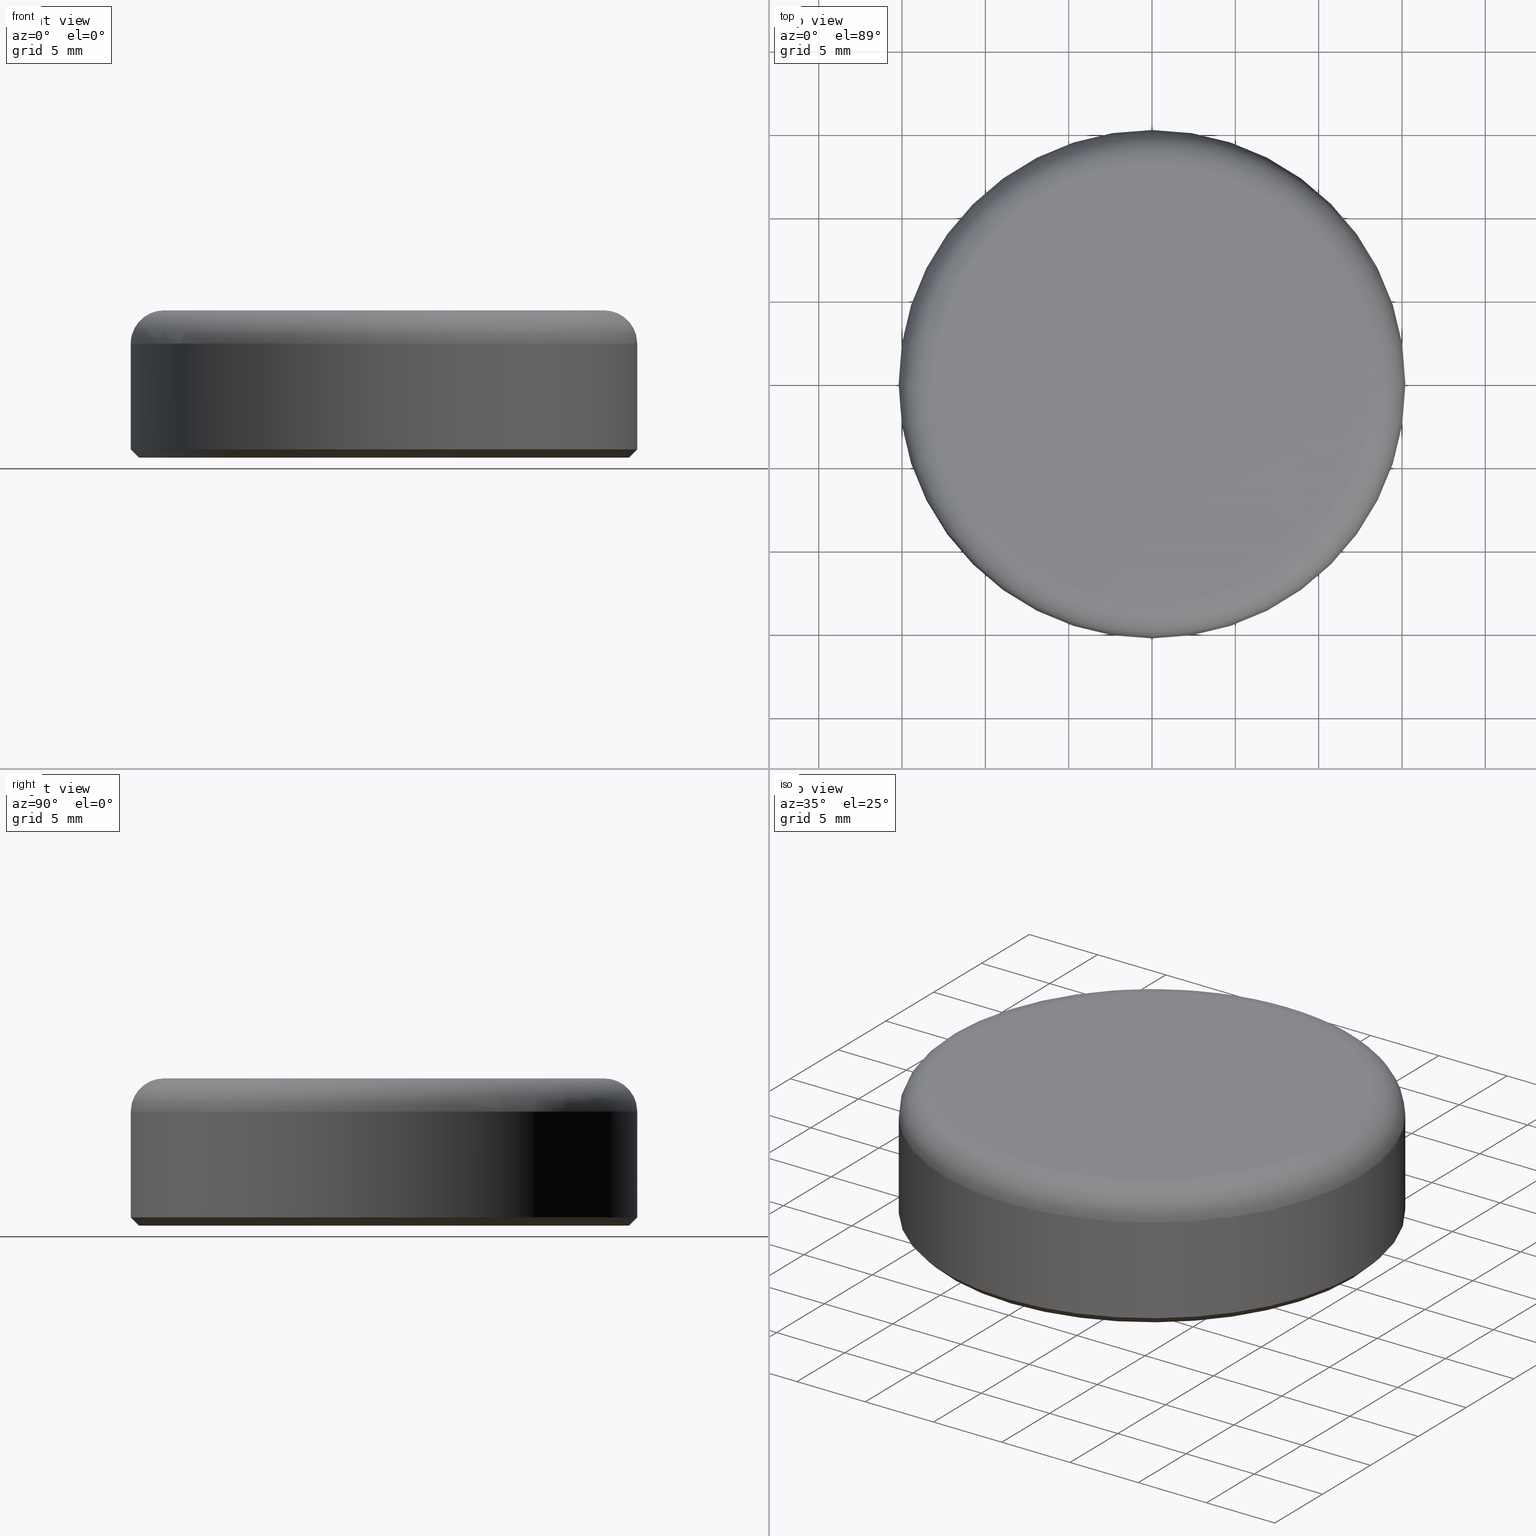
[diagram: canonical four-view strip — front | top / right | iso, engineering-drawing reading convention]
A machine part, canonical four-view strip (front | top / right | iso — engineering-drawing reading convention). The complete STEP part file that produces these views, byte-faithful:
ISO-10303-21;
HEADER;
/* Generated by software containing ST-Developer
 * from STEP Tools, Inc. (www.steptools.com) 
 */
/* OPTION: using custom schema-name function */

FILE_DESCRIPTION(
/* description */ (''),
/* implementation_level */ '2;1');

FILE_NAME(
/* name */ 'C30 Deckel.stp',
/* time_stamp */ '2013-04-16T13:24:37+02:00',
/* author */ (''),
/* organization */ (''),
/* preprocessor_version */ 'ST-DEVELOPER v11',
/* originating_system */ 'SIEMENS PLM Software NX 7.5',
/* authorisation */ '');

FILE_SCHEMA (('AUTOMOTIVE_DESIGN { 1 0 10303 214 1 1 1 1 }'));
ENDSEC;

DATA;
#10=SHAPE_REPRESENTATION_RELATIONSHIP('None',
'relationship between m.ne6B38c4tg-None and m.ne6B38c4tg-None',#22,#11);
#11=ADVANCED_BREP_SHAPE_REPRESENTATION('m.ne6B38c4tg-None',(#32),#1589);
#12=SHAPE_DEFINITION_REPRESENTATION(#13,#22);
#13=PRODUCT_DEFINITION_SHAPE('','',#14);
#14=PRODUCT_DEFINITION(' ','',#16,#15);
#15=PRODUCT_DEFINITION_CONTEXT('part definition',#21,'design');
#16=PRODUCT_DEFINITION_FORMATION_WITH_SPECIFIED_SOURCE(' ',' ',#18,.NOT_KNOWN.);
#17=PRODUCT_RELATED_PRODUCT_CATEGORY('part','',(#18));
#18=PRODUCT('m.ne6B38c4tg','m.ne6B38c4tg',' ',(#19));
#19=PRODUCT_CONTEXT(' ',#21,'mechanical');
#20=APPLICATION_PROTOCOL_DEFINITION('international standard',
'automotive_design',2001,#21);
#21=APPLICATION_CONTEXT(
'core data for automotive mechanical design processes');
#22=SHAPE_REPRESENTATION('m.ne6B38c4tg-None',(#960),#1589);
#23=PRESENTATION_LAYER_ASSIGNMENT('1','Layer 1',(#32));
#24=STYLED_ITEM('',(#25),#32);
#25=PRESENTATION_STYLE_ASSIGNMENT((#26));
#26=SURFACE_STYLE_USAGE(.BOTH.,#27);
#27=SURFACE_SIDE_STYLE('',(#28));
#28=SURFACE_STYLE_FILL_AREA(#29);
#29=FILL_AREA_STYLE('',(#30));
#30=FILL_AREA_STYLE_COLOUR('',#31);
#31=COLOUR_RGB('Dark Gray',0.2,0.2,0.2);
#32=MANIFOLD_SOLID_BREP('1AA05',#33);
#33=CLOSED_SHELL('',(#285,#286,#287,#288,#289,#290,#291,#292,#293,#294,#295,
#296,#297,#298,#299,#300,#301,#302,#303,#304,#305,#306,#307,#308,#309,#310,
#311,#312,#313,#314,#315,#316,#317,#318,#319,#320,#321,#322,#323,#324,#325,
#326,#327,#328,#329,#330,#331,#332,#333,#334,#335,#336,#337,#338,#339));
#34=PLANE('',#993);
#35=PLANE('',#994);
#36=PLANE('',#995);
#37=PLANE('',#996);
#38=PLANE('',#997);
#39=PLANE('',#998);
#40=PLANE('',#999);
#41=PLANE('',#1000);
#42=PLANE('',#1001);
#43=PLANE('',#1002);
#44=PLANE('',#1003);
#45=PLANE('',#1004);
#46=PLANE('',#1005);
#47=PLANE('',#1006);
#48=PLANE('',#1007);
#49=PLANE('',#1008);
#50=PLANE('',#1009);
#51=PLANE('',#1010);
#52=PLANE('',#1013);
#53=PLANE('',#1014);
#54=PLANE('',#1015);
#55=PLANE('',#1016);
#56=PLANE('',#1017);
#57=PLANE('',#1018);
#58=PLANE('',#1019);
#59=PLANE('',#1020);
#60=PLANE('',#1021);
#61=PLANE('',#1022);
#62=PLANE('',#1023);
#63=PLANE('',#1024);
#64=PLANE('',#1028);
#65=PLANE('',#1032);
#66=PLANE('',#1033);
#67=PLANE('',#1034);
#68=PLANE('',#1035);
#69=PLANE('',#1036);
#70=PLANE('',#1037);
#71=PLANE('',#1038);
#72=PLANE('',#1041);
#73=PLANE('',#1042);
#74=PLANE('',#1043);
#75=TOROIDAL_SURFACE('',#985,13.1999999999998,2.);
#76=CYLINDRICAL_SURFACE('',#973,12.9999999999997);
#77=CYLINDRICAL_SURFACE('',#978,14.1999999999996);
#78=CYLINDRICAL_SURFACE('',#983,15.1999999999998);
#79=CYLINDRICAL_SURFACE('',#990,14.);
#80=CYLINDRICAL_SURFACE('',#992,14.);
#81=CYLINDRICAL_SURFACE('',#1027,14.);
#82=CYLINDRICAL_SURFACE('',#1031,14.);
#83=FACE_BOUND('',#393,.T.);
#84=FACE_BOUND('',#394,.T.);
#85=FACE_BOUND('',#395,.T.);
#86=FACE_BOUND('',#396,.T.);
#87=FACE_BOUND('',#397,.T.);
#88=FACE_BOUND('',#398,.T.);
#89=FACE_BOUND('',#399,.T.);
#90=FACE_BOUND('',#400,.T.);
#91=FACE_BOUND('',#401,.T.);
#92=FACE_BOUND('',#402,.T.);
#93=FACE_BOUND('',#403,.T.);
#94=FACE_BOUND('',#404,.T.);
#95=FACE_BOUND('',#426,.T.);
#96=FACE_BOUND('',#427,.T.);
#97=FACE_BOUND('',#452,.T.);
#98=FACE_BOUND('',#453,.T.);
#99=FACE_BOUND('',#454,.T.);
#100=FACE_BOUND('',#455,.T.);
#101=LINE('',#1321,#193);
#102=LINE('',#1325,#194);
#103=LINE('',#1329,#195);
#104=LINE('',#1333,#196);
#105=LINE('',#1337,#197);
#106=LINE('',#1341,#198);
#107=LINE('',#1345,#199);
#108=LINE('',#1349,#200);
#109=LINE('',#1385,#201);
#110=LINE('',#1387,#202);
#111=LINE('',#1394,#203);
#112=LINE('',#1395,#204);
#113=LINE('',#1397,#205);
#114=LINE('',#1400,#206);
#115=LINE('',#1402,#207);
#116=LINE('',#1404,#208);
#117=LINE('',#1406,#209);
#118=LINE('',#1409,#210);
#119=LINE('',#1411,#211);
#120=LINE('',#1413,#212);
#121=LINE('',#1415,#213);
#122=LINE('',#1417,#214);
#123=LINE('',#1419,#215);
#124=LINE('',#1421,#216);
#125=LINE('',#1423,#217);
#126=LINE('',#1425,#218);
#127=LINE('',#1427,#219);
#128=LINE('',#1429,#220);
#129=LINE('',#1431,#221);
#130=LINE('',#1433,#222);
#131=LINE('',#1435,#223);
#132=LINE('',#1437,#224);
#133=LINE('',#1439,#225);
#134=LINE('',#1441,#226);
#135=LINE('',#1443,#227);
#136=LINE('',#1445,#228);
#137=LINE('',#1447,#229);
#138=LINE('',#1449,#230);
#139=LINE('',#1451,#231);
#140=LINE('',#1453,#232);
#141=LINE('',#1455,#233);
#142=LINE('',#1457,#234);
#143=LINE('',#1459,#235);
#144=LINE('',#1461,#236);
#145=LINE('',#1463,#237);
#146=LINE('',#1464,#238);
#147=LINE('',#1466,#239);
#148=LINE('',#1467,#240);
#149=LINE('',#1469,#241);
#150=LINE('',#1471,#242);
#151=LINE('',#1473,#243);
#152=LINE('',#1475,#244);
#153=LINE('',#1477,#245);
#154=LINE('',#1479,#246);
#155=LINE('',#1481,#247);
#156=LINE('',#1483,#248);
#157=LINE('',#1485,#249);
#158=LINE('',#1487,#250);
#159=LINE('',#1489,#251);
#160=LINE('',#1491,#252);
#161=LINE('',#1493,#253);
#162=LINE('',#1495,#254);
#163=LINE('',#1496,#255);
#164=LINE('',#1500,#256);
#165=LINE('',#1501,#257);
#166=LINE('',#1502,#258);
#167=LINE('',#1503,#259);
#168=LINE('',#1507,#260);
#169=LINE('',#1508,#261);
#170=LINE('',#1510,#262);
#171=LINE('',#1512,#263);
#172=LINE('',#1514,#264);
#173=LINE('',#1516,#265);
#174=LINE('',#1518,#266);
#175=LINE('',#1520,#267);
#176=LINE('',#1522,#268);
#177=LINE('',#1524,#269);
#178=LINE('',#1526,#270);
#179=LINE('',#1528,#271);
#180=LINE('',#1530,#272);
#181=LINE('',#1533,#273);
#182=LINE('',#1535,#274);
#183=LINE('',#1537,#275);
#184=LINE('',#1539,#276);
#185=LINE('',#1545,#277);
#186=LINE('',#1551,#278);
#187=LINE('',#1555,#279);
#188=LINE('',#1559,#280);
#189=LINE('',#1568,#281);
#190=LINE('',#1570,#282);
#191=LINE('',#1575,#283);
#192=LINE('',#1577,#284);
#193=VECTOR('',#1054,1.);
#194=VECTOR('',#1057,1.);
#195=VECTOR('',#1060,1.);
#196=VECTOR('',#1063,1.);
#197=VECTOR('',#1066,1.);
#198=VECTOR('',#1069,1.);
#199=VECTOR('',#1072,1.);
#200=VECTOR('',#1075,1.);
#201=VECTOR('',#1110,1.);
#202=VECTOR('',#1111,1.);
#203=VECTOR('',#1118,1.);
#204=VECTOR('',#1119,1.);
#205=VECTOR('',#1122,1.);
#206=VECTOR('',#1123,1.);
#207=VECTOR('',#1124,1.);
#208=VECTOR('',#1125,1.);
#209=VECTOR('',#1128,1.);
#210=VECTOR('',#1129,1.);
#211=VECTOR('',#1130,1.);
#212=VECTOR('',#1131,1.);
#213=VECTOR('',#1134,1.);
#214=VECTOR('',#1135,1.);
#215=VECTOR('',#1136,1.);
#216=VECTOR('',#1139,1.);
#217=VECTOR('',#1140,1.);
#218=VECTOR('',#1141,1.);
#219=VECTOR('',#1144,1.);
#220=VECTOR('',#1145,1.);
#221=VECTOR('',#1146,1.);
#222=VECTOR('',#1149,1.);
#223=VECTOR('',#1150,1.);
#224=VECTOR('',#1151,1.);
#225=VECTOR('',#1154,1.);
#226=VECTOR('',#1155,1.);
#227=VECTOR('',#1156,1.);
#228=VECTOR('',#1159,1.);
#229=VECTOR('',#1160,1.);
#230=VECTOR('',#1161,1.);
#231=VECTOR('',#1164,1.);
#232=VECTOR('',#1165,1.);
#233=VECTOR('',#1166,1.);
#234=VECTOR('',#1169,1.);
#235=VECTOR('',#1170,1.);
#236=VECTOR('',#1171,1.);
#237=VECTOR('',#1174,1.);
#238=VECTOR('',#1175,1.);
#239=VECTOR('',#1178,1.);
#240=VECTOR('',#1179,1.);
#241=VECTOR('',#1182,1.);
#242=VECTOR('',#1183,1.);
#243=VECTOR('',#1184,1.);
#244=VECTOR('',#1187,1.);
#245=VECTOR('',#1188,1.);
#246=VECTOR('',#1191,1.);
#247=VECTOR('',#1192,1.);
#248=VECTOR('',#1195,1.);
#249=VECTOR('',#1196,1.);
#250=VECTOR('',#1199,1.);
#251=VECTOR('',#1200,1.);
#252=VECTOR('',#1203,1.);
#253=VECTOR('',#1204,1.);
#254=VECTOR('',#1207,1.);
#255=VECTOR('',#1208,1.);
#256=VECTOR('',#1211,1.);
#257=VECTOR('',#1212,1.);
#258=VECTOR('',#1213,1.);
#259=VECTOR('',#1214,1.);
#260=VECTOR('',#1217,1.);
#261=VECTOR('',#1218,1.);
#262=VECTOR('',#1221,1.);
#263=VECTOR('',#1222,1.);
#264=VECTOR('',#1225,1.);
#265=VECTOR('',#1226,1.);
#266=VECTOR('',#1229,1.);
#267=VECTOR('',#1230,1.);
#268=VECTOR('',#1233,1.);
#269=VECTOR('',#1234,1.);
#270=VECTOR('',#1237,1.);
#271=VECTOR('',#1238,1.);
#272=VECTOR('',#1241,1.);
#273=VECTOR('',#1246,1.);
#274=VECTOR('',#1249,1.);
#275=VECTOR('',#1252,1.);
#276=VECTOR('',#1253,1.);
#277=VECTOR('',#1256,1.);
#278=VECTOR('',#1257,1.);
#279=VECTOR('',#1262,1.);
#280=VECTOR('',#1267,1.);
#281=VECTOR('',#1274,1.);
#282=VECTOR('',#1277,1.);
#283=VECTOR('',#1280,1.);
#284=VECTOR('',#1283,1.);
#285=ADVANCED_FACE('',(#346),#340,.F.);
#286=ADVANCED_FACE('',(#83,#84),#76,.F.);
#287=ADVANCED_FACE('',(#85,#86),#341,.F.);
#288=ADVANCED_FACE('',(#87,#88),#77,.F.);
#289=ADVANCED_FACE('',(#89,#90),#342,.T.);
#290=ADVANCED_FACE('',(#91,#92),#78,.T.);
#291=ADVANCED_FACE('',(#93,#94),#75,.T.);
#292=ADVANCED_FACE('',(#347),#343,.F.);
#293=ADVANCED_FACE('',(#348),#79,.F.);
#294=ADVANCED_FACE('',(#349),#80,.F.);
#295=ADVANCED_FACE('',(#350),#34,.T.);
#296=ADVANCED_FACE('',(#351),#35,.T.);
#297=ADVANCED_FACE('',(#352),#36,.T.);
#298=ADVANCED_FACE('',(#353),#37,.T.);
#299=ADVANCED_FACE('',(#354),#38,.T.);
#300=ADVANCED_FACE('',(#355),#39,.T.);
#301=ADVANCED_FACE('',(#356),#40,.T.);
#302=ADVANCED_FACE('',(#357),#41,.T.);
#303=ADVANCED_FACE('',(#358),#42,.T.);
#304=ADVANCED_FACE('',(#359),#43,.T.);
#305=ADVANCED_FACE('',(#360),#44,.T.);
#306=ADVANCED_FACE('',(#361),#45,.T.);
#307=ADVANCED_FACE('',(#362),#46,.F.);
#308=ADVANCED_FACE('',(#363),#47,.F.);
#309=ADVANCED_FACE('',(#364),#48,.F.);
#310=ADVANCED_FACE('',(#365),#49,.F.);
#311=ADVANCED_FACE('',(#366),#50,.F.);
#312=ADVANCED_FACE('',(#367),#51,.F.);
#313=ADVANCED_FACE('',(#95,#96),#52,.T.);
#314=ADVANCED_FACE('',(#368),#53,.F.);
#315=ADVANCED_FACE('',(#369),#54,.F.);
#316=ADVANCED_FACE('',(#370),#55,.F.);
#317=ADVANCED_FACE('',(#371),#56,.F.);
#318=ADVANCED_FACE('',(#372),#57,.F.);
#319=ADVANCED_FACE('',(#373),#58,.F.);
#320=ADVANCED_FACE('',(#374),#59,.T.);
#321=ADVANCED_FACE('',(#375),#60,.T.);
#322=ADVANCED_FACE('',(#376),#61,.T.);
#323=ADVANCED_FACE('',(#377),#62,.T.);
#324=ADVANCED_FACE('',(#378),#63,.T.);
#325=ADVANCED_FACE('',(#379),#81,.F.);
#326=ADVANCED_FACE('',(#380),#64,.T.);
#327=ADVANCED_FACE('',(#381),#82,.F.);
#328=ADVANCED_FACE('',(#382),#65,.T.);
#329=ADVANCED_FACE('',(#383),#66,.T.);
#330=ADVANCED_FACE('',(#384),#67,.T.);
#331=ADVANCED_FACE('',(#385),#68,.T.);
#332=ADVANCED_FACE('',(#386),#69,.T.);
#333=ADVANCED_FACE('',(#387),#70,.T.);
#334=ADVANCED_FACE('',(#388),#71,.T.);
#335=ADVANCED_FACE('',(#389),#344,.F.);
#336=ADVANCED_FACE('',(#390),#345,.F.);
#337=ADVANCED_FACE('',(#391),#72,.T.);
#338=ADVANCED_FACE('',(#97,#98),#73,.T.);
#339=ADVANCED_FACE('',(#99,#100),#74,.T.);
#340=CONICAL_SURFACE('',#963,13.8303729595568,24.9999999999986);
#341=CONICAL_SURFACE('',#975,13.2999999999997,24.9999999999964);
#342=CONICAL_SURFACE('',#981,14.9499999999996,45.0000000000029);
#343=CONICAL_SURFACE('',#988,13.8303729595568,24.9999999999986);
#344=CONICAL_SURFACE('',#1039,13.8303729595568,24.9999999999986);
#345=CONICAL_SURFACE('',#1040,13.8303729595568,24.9999999999986);
#346=FACE_OUTER_BOUND('',#392,.T.);
#347=FACE_OUTER_BOUND('',#405,.T.);
#348=FACE_OUTER_BOUND('',#406,.T.);
#349=FACE_OUTER_BOUND('',#407,.T.);
#350=FACE_OUTER_BOUND('',#408,.T.);
#351=FACE_OUTER_BOUND('',#409,.T.);
#352=FACE_OUTER_BOUND('',#410,.T.);
#353=FACE_OUTER_BOUND('',#411,.T.);
#354=FACE_OUTER_BOUND('',#412,.T.);
#355=FACE_OUTER_BOUND('',#413,.T.);
#356=FACE_OUTER_BOUND('',#414,.T.);
#357=FACE_OUTER_BOUND('',#415,.T.);
#358=FACE_OUTER_BOUND('',#416,.T.);
#359=FACE_OUTER_BOUND('',#417,.T.);
#360=FACE_OUTER_BOUND('',#418,.T.);
#361=FACE_OUTER_BOUND('',#419,.T.);
#362=FACE_OUTER_BOUND('',#420,.T.);
#363=FACE_OUTER_BOUND('',#421,.T.);
#364=FACE_OUTER_BOUND('',#422,.T.);
#365=FACE_OUTER_BOUND('',#423,.T.);
#366=FACE_OUTER_BOUND('',#424,.T.);
#367=FACE_OUTER_BOUND('',#425,.T.);
#368=FACE_OUTER_BOUND('',#428,.T.);
#369=FACE_OUTER_BOUND('',#429,.T.);
#370=FACE_OUTER_BOUND('',#430,.T.);
#371=FACE_OUTER_BOUND('',#431,.T.);
#372=FACE_OUTER_BOUND('',#432,.T.);
#373=FACE_OUTER_BOUND('',#433,.T.);
#374=FACE_OUTER_BOUND('',#434,.T.);
#375=FACE_OUTER_BOUND('',#435,.T.);
#376=FACE_OUTER_BOUND('',#436,.T.);
#377=FACE_OUTER_BOUND('',#437,.T.);
#378=FACE_OUTER_BOUND('',#438,.T.);
#379=FACE_OUTER_BOUND('',#439,.T.);
#380=FACE_OUTER_BOUND('',#440,.T.);
#381=FACE_OUTER_BOUND('',#441,.T.);
#382=FACE_OUTER_BOUND('',#442,.T.);
#383=FACE_OUTER_BOUND('',#443,.T.);
#384=FACE_OUTER_BOUND('',#444,.T.);
#385=FACE_OUTER_BOUND('',#445,.T.);
#386=FACE_OUTER_BOUND('',#446,.T.);
#387=FACE_OUTER_BOUND('',#447,.T.);
#388=FACE_OUTER_BOUND('',#448,.T.);
#389=FACE_OUTER_BOUND('',#449,.T.);
#390=FACE_OUTER_BOUND('',#450,.T.);
#391=FACE_OUTER_BOUND('',#451,.T.);
#392=EDGE_LOOP('',(#464,#465,#466,#467));
#393=EDGE_LOOP('',(#468,#469,#470,#471,#472,#473,#474,#475,#476,#477,#478,
#479,#480,#481,#482,#483));
#394=EDGE_LOOP('',(#484));
#395=EDGE_LOOP('',(#485));
#396=EDGE_LOOP('',(#486));
#397=EDGE_LOOP('',(#487));
#398=EDGE_LOOP('',(#488));
#399=EDGE_LOOP('',(#489));
#400=EDGE_LOOP('',(#490));
#401=EDGE_LOOP('',(#491));
#402=EDGE_LOOP('',(#492));
#403=EDGE_LOOP('',(#493));
#404=EDGE_LOOP('',(#494));
#405=EDGE_LOOP('',(#495,#496,#497,#498));
#406=EDGE_LOOP('',(#499,#500,#501,#502));
#407=EDGE_LOOP('',(#503,#504,#505,#506));
#408=EDGE_LOOP('',(#507,#508,#509,#510));
#409=EDGE_LOOP('',(#511,#512,#513,#514));
#410=EDGE_LOOP('',(#515,#516,#517,#518));
#411=EDGE_LOOP('',(#519,#520,#521,#522));
#412=EDGE_LOOP('',(#523,#524,#525,#526));
#413=EDGE_LOOP('',(#527,#528,#529,#530));
#414=EDGE_LOOP('',(#531,#532,#533,#534));
#415=EDGE_LOOP('',(#535,#536,#537,#538));
#416=EDGE_LOOP('',(#539,#540,#541,#542));
#417=EDGE_LOOP('',(#543,#544,#545,#546));
#418=EDGE_LOOP('',(#547,#548,#549,#550));
#419=EDGE_LOOP('',(#551,#552,#553,#554));
#420=EDGE_LOOP('',(#555,#556,#557,#558));
#421=EDGE_LOOP('',(#559,#560,#561,#562));
#422=EDGE_LOOP('',(#563,#564,#565,#566));
#423=EDGE_LOOP('',(#567,#568,#569,#570));
#424=EDGE_LOOP('',(#571,#572,#573,#574));
#425=EDGE_LOOP('',(#575,#576,#577,#578));
#426=EDGE_LOOP('',(#579,#580,#581,#582,#583,#584,#585,#586,#587,#588,#589,
#590,#591,#592,#593,#594));
#427=EDGE_LOOP('',(#595,#596,#597,#598,#599,#600,#601,#602,#603,#604,#605,
#606));
#428=EDGE_LOOP('',(#607,#608,#609,#610));
#429=EDGE_LOOP('',(#611,#612,#613,#614));
#430=EDGE_LOOP('',(#615,#616,#617,#618));
#431=EDGE_LOOP('',(#619,#620,#621,#622));
#432=EDGE_LOOP('',(#623,#624,#625,#626));
#433=EDGE_LOOP('',(#627,#628,#629,#630));
#434=EDGE_LOOP('',(#631,#632,#633,#634,#635,#636,#637,#638,#639,#640,#641,
#642));
#435=EDGE_LOOP('',(#643,#644,#645,#646,#647));
#436=EDGE_LOOP('',(#648,#649,#650,#651,#652));
#437=EDGE_LOOP('',(#653,#654,#655,#656,#657));
#438=EDGE_LOOP('',(#658,#659,#660,#661,#662));
#439=EDGE_LOOP('',(#663,#664,#665,#666));
#440=EDGE_LOOP('',(#667,#668,#669,#670,#671));
#441=EDGE_LOOP('',(#672,#673,#674,#675));
#442=EDGE_LOOP('',(#676,#677,#678,#679,#680));
#443=EDGE_LOOP('',(#681,#682,#683,#684,#685));
#444=EDGE_LOOP('',(#686,#687,#688,#689,#690));
#445=EDGE_LOOP('',(#691,#692,#693,#694));
#446=EDGE_LOOP('',(#695,#696,#697,#698));
#447=EDGE_LOOP('',(#699,#700,#701,#702));
#448=EDGE_LOOP('',(#703,#704,#705,#706));
#449=EDGE_LOOP('',(#707,#708,#709,#710));
#450=EDGE_LOOP('',(#711,#712,#713,#714));
#451=EDGE_LOOP('',(#715));
#452=EDGE_LOOP('',(#716));
#453=EDGE_LOOP('',(#717));
#454=EDGE_LOOP('',(#718));
#455=EDGE_LOOP('',(#719));
#456=(
BOUNDED_CURVE()
B_SPLINE_CURVE(2,(#1308,#1309,#1310),.UNSPECIFIED.,.F.,.F.)
B_SPLINE_CURVE_WITH_KNOTS((3,3),(0.,1.),.UNSPECIFIED.)
CURVE()
GEOMETRIC_REPRESENTATION_ITEM()
RATIONAL_B_SPLINE_CURVE((1.,1.00013002743835,1.00002912207519))
REPRESENTATION_ITEM('')
);
#457=(
BOUNDED_CURVE()
B_SPLINE_CURVE(2,(#1314,#1315,#1316),.UNSPECIFIED.,.F.,.F.)
B_SPLINE_CURVE_WITH_KNOTS((3,3),(0.,1.),.UNSPECIFIED.)
CURVE()
GEOMETRIC_REPRESENTATION_ITEM()
RATIONAL_B_SPLINE_CURVE((1.00002912207204,1.00013002742425,1.))
REPRESENTATION_ITEM('')
);
#458=(
BOUNDED_CURVE()
B_SPLINE_CURVE(2,(#1375,#1376,#1377),.UNSPECIFIED.,.F.,.F.)
B_SPLINE_CURVE_WITH_KNOTS((3,3),(0.,1.),.UNSPECIFIED.)
CURVE()
GEOMETRIC_REPRESENTATION_ITEM()
RATIONAL_B_SPLINE_CURVE((1.00002912207258,1.00013002742668,1.))
REPRESENTATION_ITEM('')
);
#459=(
BOUNDED_CURVE()
B_SPLINE_CURVE(2,(#1381,#1382,#1383),.UNSPECIFIED.,.F.,.F.)
B_SPLINE_CURVE_WITH_KNOTS((3,3),(0.,1.),.UNSPECIFIED.)
CURVE()
GEOMETRIC_REPRESENTATION_ITEM()
RATIONAL_B_SPLINE_CURVE((1.,1.00013002742893,1.00002912207309))
REPRESENTATION_ITEM('')
);
#460=(
BOUNDED_CURVE()
B_SPLINE_CURVE(2,(#1541,#1542,#1543),.UNSPECIFIED.,.F.,.F.)
B_SPLINE_CURVE_WITH_KNOTS((3,3),(0.,1.),.UNSPECIFIED.)
CURVE()
GEOMETRIC_REPRESENTATION_ITEM()
RATIONAL_B_SPLINE_CURVE((1.,1.00013002744536,1.00002912207677))
REPRESENTATION_ITEM('')
);
#461=(
BOUNDED_CURVE()
B_SPLINE_CURVE(2,(#1547,#1548,#1549),.UNSPECIFIED.,.F.,.F.)
B_SPLINE_CURVE_WITH_KNOTS((3,3),(0.,1.),.UNSPECIFIED.)
CURVE()
GEOMETRIC_REPRESENTATION_ITEM()
RATIONAL_B_SPLINE_CURVE((1.00002912207325,1.00013002742964,1.))
REPRESENTATION_ITEM('')
);
#462=(
BOUNDED_CURVE()
B_SPLINE_CURVE(2,(#1560,#1561,#1562),.UNSPECIFIED.,.F.,.F.)
B_SPLINE_CURVE_WITH_KNOTS((3,3),(0.,1.),.UNSPECIFIED.)
CURVE()
GEOMETRIC_REPRESENTATION_ITEM()
RATIONAL_B_SPLINE_CURVE((1.00002912206861,1.00013002740895,1.))
REPRESENTATION_ITEM('')
);
#463=(
BOUNDED_CURVE()
B_SPLINE_CURVE(2,(#1571,#1572,#1573),.UNSPECIFIED.,.F.,.F.)
B_SPLINE_CURVE_WITH_KNOTS((3,3),(0.,1.),.UNSPECIFIED.)
CURVE()
GEOMETRIC_REPRESENTATION_ITEM()
RATIONAL_B_SPLINE_CURVE((1.,1.00013002742676,1.0000291220726))
REPRESENTATION_ITEM('')
);
#464=ORIENTED_EDGE('',*,*,#804,.F.);
#465=ORIENTED_EDGE('',*,*,#805,.T.);
#466=ORIENTED_EDGE('',*,*,#806,.T.);
#467=ORIENTED_EDGE('',*,*,#807,.T.);
#468=ORIENTED_EDGE('',*,*,#808,.F.);
#469=ORIENTED_EDGE('',*,*,#809,.T.);
#470=ORIENTED_EDGE('',*,*,#810,.F.);
#471=ORIENTED_EDGE('',*,*,#811,.F.);
#472=ORIENTED_EDGE('',*,*,#812,.F.);
#473=ORIENTED_EDGE('',*,*,#813,.T.);
#474=ORIENTED_EDGE('',*,*,#814,.F.);
#475=ORIENTED_EDGE('',*,*,#815,.F.);
#476=ORIENTED_EDGE('',*,*,#816,.F.);
#477=ORIENTED_EDGE('',*,*,#817,.T.);
#478=ORIENTED_EDGE('',*,*,#818,.F.);
#479=ORIENTED_EDGE('',*,*,#819,.F.);
#480=ORIENTED_EDGE('',*,*,#820,.F.);
#481=ORIENTED_EDGE('',*,*,#821,.T.);
#482=ORIENTED_EDGE('',*,*,#822,.F.);
#483=ORIENTED_EDGE('',*,*,#823,.F.);
#484=ORIENTED_EDGE('',*,*,#824,.T.);
#485=ORIENTED_EDGE('',*,*,#824,.F.);
#486=ORIENTED_EDGE('',*,*,#825,.T.);
#487=ORIENTED_EDGE('',*,*,#826,.F.);
#488=ORIENTED_EDGE('',*,*,#827,.T.);
#489=ORIENTED_EDGE('',*,*,#828,.T.);
#490=ORIENTED_EDGE('',*,*,#829,.F.);
#491=ORIENTED_EDGE('',*,*,#830,.F.);
#492=ORIENTED_EDGE('',*,*,#828,.F.);
#493=ORIENTED_EDGE('',*,*,#831,.T.);
#494=ORIENTED_EDGE('',*,*,#830,.T.);
#495=ORIENTED_EDGE('',*,*,#832,.T.);
#496=ORIENTED_EDGE('',*,*,#833,.T.);
#497=ORIENTED_EDGE('',*,*,#834,.F.);
#498=ORIENTED_EDGE('',*,*,#835,.T.);
#499=ORIENTED_EDGE('',*,*,#836,.T.);
#500=ORIENTED_EDGE('',*,*,#832,.F.);
#501=ORIENTED_EDGE('',*,*,#837,.F.);
#502=ORIENTED_EDGE('',*,*,#838,.F.);
#503=ORIENTED_EDGE('',*,*,#839,.F.);
#504=ORIENTED_EDGE('',*,*,#840,.T.);
#505=ORIENTED_EDGE('',*,*,#806,.F.);
#506=ORIENTED_EDGE('',*,*,#841,.F.);
#507=ORIENTED_EDGE('',*,*,#842,.T.);
#508=ORIENTED_EDGE('',*,*,#843,.T.);
#509=ORIENTED_EDGE('',*,*,#844,.T.);
#510=ORIENTED_EDGE('',*,*,#845,.T.);
#511=ORIENTED_EDGE('',*,*,#846,.T.);
#512=ORIENTED_EDGE('',*,*,#847,.T.);
#513=ORIENTED_EDGE('',*,*,#848,.T.);
#514=ORIENTED_EDGE('',*,*,#849,.T.);
#515=ORIENTED_EDGE('',*,*,#850,.T.);
#516=ORIENTED_EDGE('',*,*,#845,.F.);
#517=ORIENTED_EDGE('',*,*,#851,.T.);
#518=ORIENTED_EDGE('',*,*,#852,.T.);
#519=ORIENTED_EDGE('',*,*,#853,.T.);
#520=ORIENTED_EDGE('',*,*,#854,.T.);
#521=ORIENTED_EDGE('',*,*,#855,.T.);
#522=ORIENTED_EDGE('',*,*,#852,.F.);
#523=ORIENTED_EDGE('',*,*,#856,.T.);
#524=ORIENTED_EDGE('',*,*,#854,.F.);
#525=ORIENTED_EDGE('',*,*,#857,.T.);
#526=ORIENTED_EDGE('',*,*,#858,.T.);
#527=ORIENTED_EDGE('',*,*,#859,.T.);
#528=ORIENTED_EDGE('',*,*,#858,.F.);
#529=ORIENTED_EDGE('',*,*,#860,.T.);
#530=ORIENTED_EDGE('',*,*,#861,.T.);
#531=ORIENTED_EDGE('',*,*,#862,.T.);
#532=ORIENTED_EDGE('',*,*,#863,.T.);
#533=ORIENTED_EDGE('',*,*,#864,.T.);
#534=ORIENTED_EDGE('',*,*,#861,.F.);
#535=ORIENTED_EDGE('',*,*,#865,.T.);
#536=ORIENTED_EDGE('',*,*,#863,.F.);
#537=ORIENTED_EDGE('',*,*,#866,.T.);
#538=ORIENTED_EDGE('',*,*,#867,.T.);
#539=ORIENTED_EDGE('',*,*,#868,.T.);
#540=ORIENTED_EDGE('',*,*,#867,.F.);
#541=ORIENTED_EDGE('',*,*,#869,.T.);
#542=ORIENTED_EDGE('',*,*,#870,.T.);
#543=ORIENTED_EDGE('',*,*,#871,.T.);
#544=ORIENTED_EDGE('',*,*,#872,.T.);
#545=ORIENTED_EDGE('',*,*,#873,.T.);
#546=ORIENTED_EDGE('',*,*,#870,.F.);
#547=ORIENTED_EDGE('',*,*,#874,.T.);
#548=ORIENTED_EDGE('',*,*,#872,.F.);
#549=ORIENTED_EDGE('',*,*,#875,.T.);
#550=ORIENTED_EDGE('',*,*,#847,.F.);
#551=ORIENTED_EDGE('',*,*,#876,.T.);
#552=ORIENTED_EDGE('',*,*,#843,.F.);
#553=ORIENTED_EDGE('',*,*,#877,.T.);
#554=ORIENTED_EDGE('',*,*,#849,.F.);
#555=ORIENTED_EDGE('',*,*,#864,.F.);
#556=ORIENTED_EDGE('',*,*,#878,.T.);
#557=ORIENTED_EDGE('',*,*,#879,.F.);
#558=ORIENTED_EDGE('',*,*,#880,.F.);
#559=ORIENTED_EDGE('',*,*,#865,.F.);
#560=ORIENTED_EDGE('',*,*,#881,.T.);
#561=ORIENTED_EDGE('',*,*,#882,.F.);
#562=ORIENTED_EDGE('',*,*,#878,.F.);
#563=ORIENTED_EDGE('',*,*,#868,.F.);
#564=ORIENTED_EDGE('',*,*,#883,.F.);
#565=ORIENTED_EDGE('',*,*,#884,.F.);
#566=ORIENTED_EDGE('',*,*,#881,.F.);
#567=ORIENTED_EDGE('',*,*,#873,.F.);
#568=ORIENTED_EDGE('',*,*,#885,.T.);
#569=ORIENTED_EDGE('',*,*,#886,.F.);
#570=ORIENTED_EDGE('',*,*,#883,.T.);
#571=ORIENTED_EDGE('',*,*,#874,.F.);
#572=ORIENTED_EDGE('',*,*,#887,.T.);
#573=ORIENTED_EDGE('',*,*,#888,.F.);
#574=ORIENTED_EDGE('',*,*,#885,.F.);
#575=ORIENTED_EDGE('',*,*,#846,.F.);
#576=ORIENTED_EDGE('',*,*,#889,.T.);
#577=ORIENTED_EDGE('',*,*,#890,.F.);
#578=ORIENTED_EDGE('',*,*,#887,.F.);
#579=ORIENTED_EDGE('',*,*,#891,.T.);
#580=ORIENTED_EDGE('',*,*,#822,.T.);
#581=ORIENTED_EDGE('',*,*,#892,.T.);
#582=ORIENTED_EDGE('',*,*,#893,.T.);
#583=ORIENTED_EDGE('',*,*,#894,.T.);
#584=ORIENTED_EDGE('',*,*,#818,.T.);
#585=ORIENTED_EDGE('',*,*,#895,.T.);
#586=ORIENTED_EDGE('',*,*,#834,.T.);
#587=ORIENTED_EDGE('',*,*,#896,.T.);
#588=ORIENTED_EDGE('',*,*,#814,.T.);
#589=ORIENTED_EDGE('',*,*,#897,.T.);
#590=ORIENTED_EDGE('',*,*,#898,.T.);
#591=ORIENTED_EDGE('',*,*,#899,.T.);
#592=ORIENTED_EDGE('',*,*,#810,.T.);
#593=ORIENTED_EDGE('',*,*,#900,.T.);
#594=ORIENTED_EDGE('',*,*,#804,.T.);
#595=ORIENTED_EDGE('',*,*,#848,.F.);
#596=ORIENTED_EDGE('',*,*,#875,.F.);
#597=ORIENTED_EDGE('',*,*,#871,.F.);
#598=ORIENTED_EDGE('',*,*,#869,.F.);
#599=ORIENTED_EDGE('',*,*,#866,.F.);
#600=ORIENTED_EDGE('',*,*,#862,.F.);
#601=ORIENTED_EDGE('',*,*,#860,.F.);
#602=ORIENTED_EDGE('',*,*,#857,.F.);
#603=ORIENTED_EDGE('',*,*,#853,.F.);
#604=ORIENTED_EDGE('',*,*,#851,.F.);
#605=ORIENTED_EDGE('',*,*,#844,.F.);
#606=ORIENTED_EDGE('',*,*,#876,.F.);
#607=ORIENTED_EDGE('',*,*,#877,.F.);
#608=ORIENTED_EDGE('',*,*,#901,.T.);
#609=ORIENTED_EDGE('',*,*,#902,.F.);
#610=ORIENTED_EDGE('',*,*,#889,.F.);
#611=ORIENTED_EDGE('',*,*,#842,.F.);
#612=ORIENTED_EDGE('',*,*,#903,.T.);
#613=ORIENTED_EDGE('',*,*,#904,.F.);
#614=ORIENTED_EDGE('',*,*,#901,.F.);
#615=ORIENTED_EDGE('',*,*,#850,.F.);
#616=ORIENTED_EDGE('',*,*,#905,.F.);
#617=ORIENTED_EDGE('',*,*,#906,.F.);
#618=ORIENTED_EDGE('',*,*,#903,.F.);
#619=ORIENTED_EDGE('',*,*,#855,.F.);
#620=ORIENTED_EDGE('',*,*,#907,.T.);
#621=ORIENTED_EDGE('',*,*,#908,.F.);
#622=ORIENTED_EDGE('',*,*,#905,.T.);
#623=ORIENTED_EDGE('',*,*,#856,.F.);
#624=ORIENTED_EDGE('',*,*,#909,.T.);
#625=ORIENTED_EDGE('',*,*,#910,.F.);
#626=ORIENTED_EDGE('',*,*,#907,.F.);
#627=ORIENTED_EDGE('',*,*,#859,.F.);
#628=ORIENTED_EDGE('',*,*,#880,.T.);
#629=ORIENTED_EDGE('',*,*,#911,.F.);
#630=ORIENTED_EDGE('',*,*,#909,.F.);
#631=ORIENTED_EDGE('',*,*,#908,.T.);
#632=ORIENTED_EDGE('',*,*,#910,.T.);
#633=ORIENTED_EDGE('',*,*,#911,.T.);
#634=ORIENTED_EDGE('',*,*,#879,.T.);
#635=ORIENTED_EDGE('',*,*,#882,.T.);
#636=ORIENTED_EDGE('',*,*,#884,.T.);
#637=ORIENTED_EDGE('',*,*,#886,.T.);
#638=ORIENTED_EDGE('',*,*,#888,.T.);
#639=ORIENTED_EDGE('',*,*,#890,.T.);
#640=ORIENTED_EDGE('',*,*,#902,.T.);
#641=ORIENTED_EDGE('',*,*,#904,.T.);
#642=ORIENTED_EDGE('',*,*,#906,.T.);
#643=ORIENTED_EDGE('',*,*,#912,.F.);
#644=ORIENTED_EDGE('',*,*,#823,.T.);
#645=ORIENTED_EDGE('',*,*,#891,.F.);
#646=ORIENTED_EDGE('',*,*,#807,.F.);
#647=ORIENTED_EDGE('',*,*,#840,.F.);
#648=ORIENTED_EDGE('',*,*,#913,.F.);
#649=ORIENTED_EDGE('',*,*,#841,.T.);
#650=ORIENTED_EDGE('',*,*,#805,.F.);
#651=ORIENTED_EDGE('',*,*,#900,.F.);
#652=ORIENTED_EDGE('',*,*,#809,.F.);
#653=ORIENTED_EDGE('',*,*,#914,.F.);
#654=ORIENTED_EDGE('',*,*,#915,.T.);
#655=ORIENTED_EDGE('',*,*,#916,.F.);
#656=ORIENTED_EDGE('',*,*,#892,.F.);
#657=ORIENTED_EDGE('',*,*,#821,.F.);
#658=ORIENTED_EDGE('',*,*,#917,.F.);
#659=ORIENTED_EDGE('',*,*,#811,.T.);
#660=ORIENTED_EDGE('',*,*,#899,.F.);
#661=ORIENTED_EDGE('',*,*,#918,.F.);
#662=ORIENTED_EDGE('',*,*,#919,.F.);
#663=ORIENTED_EDGE('',*,*,#920,.F.);
#664=ORIENTED_EDGE('',*,*,#921,.T.);
#665=ORIENTED_EDGE('',*,*,#922,.F.);
#666=ORIENTED_EDGE('',*,*,#915,.F.);
#667=ORIENTED_EDGE('',*,*,#923,.F.);
#668=ORIENTED_EDGE('',*,*,#819,.T.);
#669=ORIENTED_EDGE('',*,*,#894,.F.);
#670=ORIENTED_EDGE('',*,*,#924,.F.);
#671=ORIENTED_EDGE('',*,*,#921,.F.);
#672=ORIENTED_EDGE('',*,*,#925,.F.);
#673=ORIENTED_EDGE('',*,*,#919,.T.);
#674=ORIENTED_EDGE('',*,*,#926,.F.);
#675=ORIENTED_EDGE('',*,*,#927,.F.);
#676=ORIENTED_EDGE('',*,*,#928,.F.);
#677=ORIENTED_EDGE('',*,*,#927,.T.);
#678=ORIENTED_EDGE('',*,*,#929,.F.);
#679=ORIENTED_EDGE('',*,*,#897,.F.);
#680=ORIENTED_EDGE('',*,*,#813,.F.);
#681=ORIENTED_EDGE('',*,*,#930,.F.);
#682=ORIENTED_EDGE('',*,*,#815,.T.);
#683=ORIENTED_EDGE('',*,*,#896,.F.);
#684=ORIENTED_EDGE('',*,*,#833,.F.);
#685=ORIENTED_EDGE('',*,*,#836,.F.);
#686=ORIENTED_EDGE('',*,*,#931,.F.);
#687=ORIENTED_EDGE('',*,*,#837,.T.);
#688=ORIENTED_EDGE('',*,*,#835,.F.);
#689=ORIENTED_EDGE('',*,*,#895,.F.);
#690=ORIENTED_EDGE('',*,*,#817,.F.);
#691=ORIENTED_EDGE('',*,*,#917,.T.);
#692=ORIENTED_EDGE('',*,*,#925,.T.);
#693=ORIENTED_EDGE('',*,*,#928,.T.);
#694=ORIENTED_EDGE('',*,*,#812,.T.);
#695=ORIENTED_EDGE('',*,*,#931,.T.);
#696=ORIENTED_EDGE('',*,*,#816,.T.);
#697=ORIENTED_EDGE('',*,*,#930,.T.);
#698=ORIENTED_EDGE('',*,*,#838,.T.);
#699=ORIENTED_EDGE('',*,*,#914,.T.);
#700=ORIENTED_EDGE('',*,*,#820,.T.);
#701=ORIENTED_EDGE('',*,*,#923,.T.);
#702=ORIENTED_EDGE('',*,*,#920,.T.);
#703=ORIENTED_EDGE('',*,*,#912,.T.);
#704=ORIENTED_EDGE('',*,*,#839,.T.);
#705=ORIENTED_EDGE('',*,*,#913,.T.);
#706=ORIENTED_EDGE('',*,*,#808,.T.);
#707=ORIENTED_EDGE('',*,*,#916,.T.);
#708=ORIENTED_EDGE('',*,*,#922,.T.);
#709=ORIENTED_EDGE('',*,*,#924,.T.);
#710=ORIENTED_EDGE('',*,*,#893,.F.);
#711=ORIENTED_EDGE('',*,*,#918,.T.);
#712=ORIENTED_EDGE('',*,*,#898,.F.);
#713=ORIENTED_EDGE('',*,*,#929,.T.);
#714=ORIENTED_EDGE('',*,*,#926,.T.);
#715=ORIENTED_EDGE('',*,*,#831,.F.);
#716=ORIENTED_EDGE('',*,*,#829,.T.);
#717=ORIENTED_EDGE('',*,*,#827,.F.);
#718=ORIENTED_EDGE('',*,*,#826,.T.);
#719=ORIENTED_EDGE('',*,*,#825,.F.);
#720=VERTEX_POINT('',#1306);
#721=VERTEX_POINT('',#1307);
#722=VERTEX_POINT('',#1311);
#723=VERTEX_POINT('',#1313);
#724=VERTEX_POINT('',#1319);
#725=VERTEX_POINT('',#1320);
#726=VERTEX_POINT('',#1322);
#727=VERTEX_POINT('',#1324);
#728=VERTEX_POINT('',#1326);
#729=VERTEX_POINT('',#1328);
#730=VERTEX_POINT('',#1330);
#731=VERTEX_POINT('',#1332);
#732=VERTEX_POINT('',#1334);
#733=VERTEX_POINT('',#1336);
#734=VERTEX_POINT('',#1338);
#735=VERTEX_POINT('',#1340);
#736=VERTEX_POINT('',#1342);
#737=VERTEX_POINT('',#1344);
#738=VERTEX_POINT('',#1346);
#739=VERTEX_POINT('',#1348);
#740=VERTEX_POINT('',#1351);
#741=VERTEX_POINT('',#1354);
#742=VERTEX_POINT('',#1357);
#743=VERTEX_POINT('',#1359);
#744=VERTEX_POINT('',#1362);
#745=VERTEX_POINT('',#1364);
#746=VERTEX_POINT('',#1367);
#747=VERTEX_POINT('',#1370);
#748=VERTEX_POINT('',#1373);
#749=VERTEX_POINT('',#1374);
#750=VERTEX_POINT('',#1378);
#751=VERTEX_POINT('',#1380);
#752=VERTEX_POINT('',#1386);
#753=VERTEX_POINT('',#1388);
#754=VERTEX_POINT('',#1392);
#755=VERTEX_POINT('',#1393);
#756=VERTEX_POINT('',#1398);
#757=VERTEX_POINT('',#1399);
#758=VERTEX_POINT('',#1401);
#759=VERTEX_POINT('',#1403);
#760=VERTEX_POINT('',#1407);
#761=VERTEX_POINT('',#1408);
#762=VERTEX_POINT('',#1410);
#763=VERTEX_POINT('',#1412);
#764=VERTEX_POINT('',#1416);
#765=VERTEX_POINT('',#1418);
#766=VERTEX_POINT('',#1422);
#767=VERTEX_POINT('',#1424);
#768=VERTEX_POINT('',#1428);
#769=VERTEX_POINT('',#1430);
#770=VERTEX_POINT('',#1434);
#771=VERTEX_POINT('',#1436);
#772=VERTEX_POINT('',#1440);
#773=VERTEX_POINT('',#1442);
#774=VERTEX_POINT('',#1446);
#775=VERTEX_POINT('',#1448);
#776=VERTEX_POINT('',#1452);
#777=VERTEX_POINT('',#1454);
#778=VERTEX_POINT('',#1458);
#779=VERTEX_POINT('',#1460);
#780=VERTEX_POINT('',#1470);
#781=VERTEX_POINT('',#1472);
#782=VERTEX_POINT('',#1476);
#783=VERTEX_POINT('',#1480);
#784=VERTEX_POINT('',#1484);
#785=VERTEX_POINT('',#1488);
#786=VERTEX_POINT('',#1492);
#787=VERTEX_POINT('',#1497);
#788=VERTEX_POINT('',#1499);
#789=VERTEX_POINT('',#1504);
#790=VERTEX_POINT('',#1506);
#791=VERTEX_POINT('',#1511);
#792=VERTEX_POINT('',#1515);
#793=VERTEX_POINT('',#1519);
#794=VERTEX_POINT('',#1523);
#795=VERTEX_POINT('',#1527);
#796=VERTEX_POINT('',#1538);
#797=VERTEX_POINT('',#1540);
#798=VERTEX_POINT('',#1546);
#799=VERTEX_POINT('',#1550);
#800=VERTEX_POINT('',#1554);
#801=VERTEX_POINT('',#1556);
#802=VERTEX_POINT('',#1565);
#803=VERTEX_POINT('',#1567);
#804=EDGE_CURVE('',#720,#721,#932,.T.);
#805=EDGE_CURVE('',#720,#722,#456,.T.);
#806=EDGE_CURVE('',#722,#723,#933,.T.);
#807=EDGE_CURVE('',#723,#721,#457,.T.);
#808=EDGE_CURVE('',#724,#725,#934,.T.);
#809=EDGE_CURVE('',#724,#726,#101,.T.);
#810=EDGE_CURVE('',#727,#726,#935,.T.);
#811=EDGE_CURVE('',#728,#727,#102,.T.);
#812=EDGE_CURVE('',#729,#728,#936,.T.);
#813=EDGE_CURVE('',#729,#730,#103,.T.);
#814=EDGE_CURVE('',#731,#730,#937,.T.);
#815=EDGE_CURVE('',#732,#731,#104,.T.);
#816=EDGE_CURVE('',#733,#732,#938,.T.);
#817=EDGE_CURVE('',#733,#734,#105,.T.);
#818=EDGE_CURVE('',#735,#734,#939,.T.);
#819=EDGE_CURVE('',#736,#735,#106,.T.);
#820=EDGE_CURVE('',#737,#736,#940,.T.);
#821=EDGE_CURVE('',#737,#738,#107,.T.);
#822=EDGE_CURVE('',#739,#738,#941,.T.);
#823=EDGE_CURVE('',#725,#739,#108,.T.);
#824=EDGE_CURVE('',#740,#740,#942,.T.);
#825=EDGE_CURVE('',#741,#741,#943,.T.);
#826=EDGE_CURVE('',#742,#742,#944,.T.);
#827=EDGE_CURVE('',#743,#743,#945,.T.);
#828=EDGE_CURVE('',#744,#744,#946,.T.);
#829=EDGE_CURVE('',#745,#745,#947,.T.);
#830=EDGE_CURVE('',#746,#746,#948,.T.);
#831=EDGE_CURVE('',#747,#747,#949,.T.);
#832=EDGE_CURVE('',#748,#749,#950,.T.);
#833=EDGE_CURVE('',#749,#750,#458,.T.);
#834=EDGE_CURVE('',#751,#750,#951,.T.);
#835=EDGE_CURVE('',#751,#748,#459,.T.);
#836=EDGE_CURVE('',#752,#749,#109,.T.);
#837=EDGE_CURVE('',#753,#748,#110,.T.);
#838=EDGE_CURVE('',#752,#753,#952,.T.);
#839=EDGE_CURVE('',#754,#755,#953,.T.);
#840=EDGE_CURVE('',#754,#723,#111,.T.);
#841=EDGE_CURVE('',#755,#722,#112,.T.);
#842=EDGE_CURVE('',#756,#757,#113,.T.);
#843=EDGE_CURVE('',#757,#758,#114,.T.);
#844=EDGE_CURVE('',#758,#759,#115,.T.);
#845=EDGE_CURVE('',#759,#756,#116,.T.);
#846=EDGE_CURVE('',#760,#761,#117,.T.);
#847=EDGE_CURVE('',#761,#762,#118,.T.);
#848=EDGE_CURVE('',#762,#763,#119,.T.);
#849=EDGE_CURVE('',#763,#760,#120,.T.);
#850=EDGE_CURVE('',#764,#756,#121,.T.);
#851=EDGE_CURVE('',#759,#765,#122,.T.);
#852=EDGE_CURVE('',#765,#764,#123,.T.);
#853=EDGE_CURVE('',#765,#766,#124,.T.);
#854=EDGE_CURVE('',#766,#767,#125,.T.);
#855=EDGE_CURVE('',#767,#764,#126,.T.);
#856=EDGE_CURVE('',#768,#767,#127,.T.);
#857=EDGE_CURVE('',#766,#769,#128,.T.);
#858=EDGE_CURVE('',#769,#768,#129,.T.);
#859=EDGE_CURVE('',#770,#768,#130,.T.);
#860=EDGE_CURVE('',#769,#771,#131,.T.);
#861=EDGE_CURVE('',#771,#770,#132,.T.);
#862=EDGE_CURVE('',#771,#772,#133,.T.);
#863=EDGE_CURVE('',#772,#773,#134,.T.);
#864=EDGE_CURVE('',#773,#770,#135,.T.);
#865=EDGE_CURVE('',#774,#773,#136,.T.);
#866=EDGE_CURVE('',#772,#775,#137,.T.);
#867=EDGE_CURVE('',#775,#774,#138,.T.);
#868=EDGE_CURVE('',#776,#774,#139,.T.);
#869=EDGE_CURVE('',#775,#777,#140,.T.);
#870=EDGE_CURVE('',#777,#776,#141,.T.);
#871=EDGE_CURVE('',#777,#778,#142,.T.);
#872=EDGE_CURVE('',#778,#779,#143,.T.);
#873=EDGE_CURVE('',#779,#776,#144,.T.);
#874=EDGE_CURVE('',#761,#779,#145,.T.);
#875=EDGE_CURVE('',#778,#762,#146,.T.);
#876=EDGE_CURVE('',#763,#758,#147,.T.);
#877=EDGE_CURVE('',#757,#760,#148,.T.);
#878=EDGE_CURVE('',#773,#780,#149,.T.);
#879=EDGE_CURVE('',#781,#780,#150,.T.);
#880=EDGE_CURVE('',#770,#781,#151,.T.);
#881=EDGE_CURVE('',#774,#782,#152,.T.);
#882=EDGE_CURVE('',#780,#782,#153,.T.);
#883=EDGE_CURVE('',#783,#776,#154,.T.);
#884=EDGE_CURVE('',#782,#783,#155,.T.);
#885=EDGE_CURVE('',#779,#784,#156,.T.);
#886=EDGE_CURVE('',#783,#784,#157,.T.);
#887=EDGE_CURVE('',#761,#785,#158,.T.);
#888=EDGE_CURVE('',#784,#785,#159,.T.);
#889=EDGE_CURVE('',#760,#786,#160,.T.);
#890=EDGE_CURVE('',#785,#786,#161,.T.);
#891=EDGE_CURVE('',#721,#739,#162,.T.);
#892=EDGE_CURVE('',#738,#787,#163,.T.);
#893=EDGE_CURVE('',#787,#788,#954,.T.);
#894=EDGE_CURVE('',#788,#735,#164,.T.);
#895=EDGE_CURVE('',#734,#751,#165,.T.);
#896=EDGE_CURVE('',#750,#731,#166,.T.);
#897=EDGE_CURVE('',#730,#789,#167,.T.);
#898=EDGE_CURVE('',#789,#790,#955,.T.);
#899=EDGE_CURVE('',#790,#727,#168,.T.);
#900=EDGE_CURVE('',#726,#720,#169,.T.);
#901=EDGE_CURVE('',#757,#791,#170,.T.);
#902=EDGE_CURVE('',#786,#791,#171,.T.);
#903=EDGE_CURVE('',#756,#792,#172,.T.);
#904=EDGE_CURVE('',#791,#792,#173,.T.);
#905=EDGE_CURVE('',#793,#764,#174,.T.);
#906=EDGE_CURVE('',#792,#793,#175,.T.);
#907=EDGE_CURVE('',#767,#794,#176,.T.);
#908=EDGE_CURVE('',#793,#794,#177,.T.);
#909=EDGE_CURVE('',#768,#795,#178,.T.);
#910=EDGE_CURVE('',#794,#795,#179,.T.);
#911=EDGE_CURVE('',#795,#781,#180,.T.);
#912=EDGE_CURVE('',#725,#754,#181,.T.);
#913=EDGE_CURVE('',#755,#724,#182,.T.);
#914=EDGE_CURVE('',#796,#737,#183,.T.);
#915=EDGE_CURVE('',#796,#797,#184,.T.);
#916=EDGE_CURVE('',#787,#797,#460,.T.);
#917=EDGE_CURVE('',#728,#798,#185,.T.);
#918=EDGE_CURVE('',#799,#790,#461,.T.);
#919=EDGE_CURVE('',#798,#799,#186,.T.);
#920=EDGE_CURVE('',#800,#796,#956,.T.);
#921=EDGE_CURVE('',#800,#801,#187,.T.);
#922=EDGE_CURVE('',#797,#801,#957,.T.);
#923=EDGE_CURVE('',#736,#800,#188,.T.);
#924=EDGE_CURVE('',#801,#788,#462,.T.);
#925=EDGE_CURVE('',#798,#802,#958,.T.);
#926=EDGE_CURVE('',#803,#799,#959,.T.);
#927=EDGE_CURVE('',#802,#803,#189,.T.);
#928=EDGE_CURVE('',#802,#729,#190,.T.);
#929=EDGE_CURVE('',#789,#803,#463,.T.);
#930=EDGE_CURVE('',#732,#752,#191,.T.);
#931=EDGE_CURVE('',#753,#733,#192,.T.);
#932=CIRCLE('',#961,13.6107459191138);
#933=CIRCLE('',#962,14.);
#934=CIRCLE('',#964,12.9999999999998);
#935=CIRCLE('',#965,13.);
#936=CIRCLE('',#966,12.9999999999998);
#937=CIRCLE('',#967,13.);
#938=CIRCLE('',#968,12.9999999999998);
#939=CIRCLE('',#969,13.);
#940=CIRCLE('',#970,12.9999999999998);
#941=CIRCLE('',#971,13.);
#942=CIRCLE('',#972,12.9999999999996);
#943=CIRCLE('',#974,13.5999999999997);
#944=CIRCLE('',#976,14.1999999999996);
#945=CIRCLE('',#977,14.1999999999996);
#946=CIRCLE('',#979,15.1999999999996);
#947=CIRCLE('',#980,14.6999999999996);
#948=CIRCLE('',#982,15.1999999999998);
#949=CIRCLE('',#984,13.1999999999998);
#950=CIRCLE('',#986,14.);
#951=CIRCLE('',#987,13.6107459191138);
#952=CIRCLE('',#989,14.);
#953=CIRCLE('',#991,14.);
#954=CIRCLE('',#1011,13.6107459191138);
#955=CIRCLE('',#1012,13.6107459191138);
#956=CIRCLE('',#1025,14.);
#957=CIRCLE('',#1026,14.);
#958=CIRCLE('',#1029,14.);
#959=CIRCLE('',#1030,14.);
#960=AXIS2_PLACEMENT_3D('',#1304,#1044,#1045);
#961=AXIS2_PLACEMENT_3D('',#1305,#1046,#1047);
#962=AXIS2_PLACEMENT_3D('',#1312,#1048,#1049);
#963=AXIS2_PLACEMENT_3D('',#1317,#1050,#1051);
#964=AXIS2_PLACEMENT_3D('',#1318,#1052,#1053);
#965=AXIS2_PLACEMENT_3D('',#1323,#1055,#1056);
#966=AXIS2_PLACEMENT_3D('',#1327,#1058,#1059);
#967=AXIS2_PLACEMENT_3D('',#1331,#1061,#1062);
#968=AXIS2_PLACEMENT_3D('',#1335,#1064,#1065);
#969=AXIS2_PLACEMENT_3D('',#1339,#1067,#1068);
#970=AXIS2_PLACEMENT_3D('',#1343,#1070,#1071);
#971=AXIS2_PLACEMENT_3D('',#1347,#1073,#1074);
#972=AXIS2_PLACEMENT_3D('',#1350,#1076,#1077);
#973=AXIS2_PLACEMENT_3D('',#1352,#1078,#1079);
#974=AXIS2_PLACEMENT_3D('',#1353,#1080,#1081);
#975=AXIS2_PLACEMENT_3D('',#1355,#1082,#1083);
#976=AXIS2_PLACEMENT_3D('',#1356,#1084,#1085);
#977=AXIS2_PLACEMENT_3D('',#1358,#1086,#1087);
#978=AXIS2_PLACEMENT_3D('',#1360,#1088,#1089);
#979=AXIS2_PLACEMENT_3D('',#1361,#1090,#1091);
#980=AXIS2_PLACEMENT_3D('',#1363,#1092,#1093);
#981=AXIS2_PLACEMENT_3D('',#1365,#1094,#1095);
#982=AXIS2_PLACEMENT_3D('',#1366,#1096,#1097);
#983=AXIS2_PLACEMENT_3D('',#1368,#1098,#1099);
#984=AXIS2_PLACEMENT_3D('',#1369,#1100,#1101);
#985=AXIS2_PLACEMENT_3D('',#1371,#1102,#1103);
#986=AXIS2_PLACEMENT_3D('',#1372,#1104,#1105);
#987=AXIS2_PLACEMENT_3D('',#1379,#1106,#1107);
#988=AXIS2_PLACEMENT_3D('',#1384,#1108,#1109);
#989=AXIS2_PLACEMENT_3D('',#1389,#1112,#1113);
#990=AXIS2_PLACEMENT_3D('',#1390,#1114,#1115);
#991=AXIS2_PLACEMENT_3D('',#1391,#1116,#1117);
#992=AXIS2_PLACEMENT_3D('',#1396,#1120,#1121);
#993=AXIS2_PLACEMENT_3D('',#1405,#1126,#1127);
#994=AXIS2_PLACEMENT_3D('',#1414,#1132,#1133);
#995=AXIS2_PLACEMENT_3D('',#1420,#1137,#1138);
#996=AXIS2_PLACEMENT_3D('',#1426,#1142,#1143);
#997=AXIS2_PLACEMENT_3D('',#1432,#1147,#1148);
#998=AXIS2_PLACEMENT_3D('',#1438,#1152,#1153);
#999=AXIS2_PLACEMENT_3D('',#1444,#1157,#1158);
#1000=AXIS2_PLACEMENT_3D('',#1450,#1162,#1163);
#1001=AXIS2_PLACEMENT_3D('',#1456,#1167,#1168);
#1002=AXIS2_PLACEMENT_3D('',#1462,#1172,#1173);
#1003=AXIS2_PLACEMENT_3D('',#1465,#1176,#1177);
#1004=AXIS2_PLACEMENT_3D('',#1468,#1180,#1181);
#1005=AXIS2_PLACEMENT_3D('',#1474,#1185,#1186);
#1006=AXIS2_PLACEMENT_3D('',#1478,#1189,#1190);
#1007=AXIS2_PLACEMENT_3D('',#1482,#1193,#1194);
#1008=AXIS2_PLACEMENT_3D('',#1486,#1197,#1198);
#1009=AXIS2_PLACEMENT_3D('',#1490,#1201,#1202);
#1010=AXIS2_PLACEMENT_3D('',#1494,#1205,#1206);
#1011=AXIS2_PLACEMENT_3D('',#1498,#1209,#1210);
#1012=AXIS2_PLACEMENT_3D('',#1505,#1215,#1216);
#1013=AXIS2_PLACEMENT_3D('',#1509,#1219,#1220);
#1014=AXIS2_PLACEMENT_3D('',#1513,#1223,#1224);
#1015=AXIS2_PLACEMENT_3D('',#1517,#1227,#1228);
#1016=AXIS2_PLACEMENT_3D('',#1521,#1231,#1232);
#1017=AXIS2_PLACEMENT_3D('',#1525,#1235,#1236);
#1018=AXIS2_PLACEMENT_3D('',#1529,#1239,#1240);
#1019=AXIS2_PLACEMENT_3D('',#1531,#1242,#1243);
#1020=AXIS2_PLACEMENT_3D('',#1532,#1244,#1245);
#1021=AXIS2_PLACEMENT_3D('',#1534,#1247,#1248);
#1022=AXIS2_PLACEMENT_3D('',#1536,#1250,#1251);
#1023=AXIS2_PLACEMENT_3D('',#1544,#1254,#1255);
#1024=AXIS2_PLACEMENT_3D('',#1552,#1258,#1259);
#1025=AXIS2_PLACEMENT_3D('',#1553,#1260,#1261);
#1026=AXIS2_PLACEMENT_3D('',#1557,#1263,#1264);
#1027=AXIS2_PLACEMENT_3D('',#1558,#1265,#1266);
#1028=AXIS2_PLACEMENT_3D('',#1563,#1268,#1269);
#1029=AXIS2_PLACEMENT_3D('',#1564,#1270,#1271);
#1030=AXIS2_PLACEMENT_3D('',#1566,#1272,#1273);
#1031=AXIS2_PLACEMENT_3D('',#1569,#1275,#1276);
#1032=AXIS2_PLACEMENT_3D('',#1574,#1278,#1279);
#1033=AXIS2_PLACEMENT_3D('',#1576,#1281,#1282);
#1034=AXIS2_PLACEMENT_3D('',#1578,#1284,#1285);
#1035=AXIS2_PLACEMENT_3D('',#1579,#1286,#1287);
#1036=AXIS2_PLACEMENT_3D('',#1580,#1288,#1289);
#1037=AXIS2_PLACEMENT_3D('',#1581,#1290,#1291);
#1038=AXIS2_PLACEMENT_3D('',#1582,#1292,#1293);
#1039=AXIS2_PLACEMENT_3D('',#1583,#1294,#1295);
#1040=AXIS2_PLACEMENT_3D('',#1584,#1296,#1297);
#1041=AXIS2_PLACEMENT_3D('',#1585,#1298,#1299);
#1042=AXIS2_PLACEMENT_3D('',#1586,#1300,#1301);
#1043=AXIS2_PLACEMENT_3D('',#1587,#1302,#1303);
#1044=DIRECTION('',(0.,0.,1.));
#1045=DIRECTION('',(1.,0.,0.));
#1046=DIRECTION('',(0.,0.,-1.));
#1047=DIRECTION('',(1.,0.,0.));
#1048=DIRECTION('',(0.,0.,-1.));
#1049=DIRECTION('',(1.,0.,0.));
#1050=DIRECTION('',(5.015596E-014,-4.669659E-016,-1.));
#1051=DIRECTION('',(-1.,-2.33612321233429E-029,-5.00612884743582E-014));
#1052=DIRECTION('',(0.,0.,-1.));
#1053=DIRECTION('',(1.,0.,0.));
#1054=DIRECTION('',(-1.509276E-013,1.372069E-015,1.));
#1055=DIRECTION('',(0.,0.,-1.));
#1056=DIRECTION('',(1.,0.,0.));
#1057=DIRECTION('',(0.,0.,1.));
#1058=DIRECTION('',(0.,0.,-1.));
#1059=DIRECTION('',(1.,0.,0.));
#1060=DIRECTION('',(-8.826977E-014,-1.170832E-013,1.));
#1061=DIRECTION('',(0.,0.,-1.));
#1062=DIRECTION('',(1.,0.,0.));
#1063=DIRECTION('',(0.,0.,1.));
#1064=DIRECTION('',(0.,0.,-1.));
#1065=DIRECTION('',(1.,0.,0.));
#1066=DIRECTION('',(0.,0.,1.));
#1067=DIRECTION('',(0.,0.,-1.));
#1068=DIRECTION('',(1.,0.,0.));
#1069=DIRECTION('',(0.,0.,1.));
#1070=DIRECTION('',(0.,0.,-1.));
#1071=DIRECTION('',(1.,0.,0.));
#1072=DIRECTION('',(0.,0.,1.));
#1073=DIRECTION('',(0.,0.,-1.));
#1074=DIRECTION('',(1.,0.,0.));
#1075=DIRECTION('',(0.,0.,1.));
#1076=DIRECTION('',(0.,0.,-1.));
#1077=DIRECTION('',(1.,0.,0.));
#1078=DIRECTION('',(5.015596E-014,-4.669659E-016,-1.));
#1079=DIRECTION('',(-1.,-2.37037531616897E-029,-4.91060183968832E-014));
#1080=DIRECTION('',(0.,0.,-1.));
#1081=DIRECTION('',(1.,0.,0.));
#1082=DIRECTION('',(5.015596E-014,-4.669659E-016,-1.));
#1083=DIRECTION('',(-1.,-2.34641663027999E-029,-5.01745200469196E-014));
#1084=DIRECTION('',(0.,0.,-1.));
#1085=DIRECTION('',(1.,0.,0.));
#1086=DIRECTION('',(0.,0.,-1.));
#1087=DIRECTION('',(1.,0.,0.));
#1088=DIRECTION('',(5.015596E-014,-4.669659E-016,-1.));
#1089=DIRECTION('',(-1.,-2.34366686190228E-029,-5.08200680286177E-014));
#1090=DIRECTION('',(0.,0.,-1.));
#1091=DIRECTION('',(1.,0.,0.));
#1092=DIRECTION('',(0.,0.,-1.));
#1093=DIRECTION('',(1.,0.,0.));
#1094=DIRECTION('',(-5.015596E-014,4.669659E-016,1.));
#1095=DIRECTION('',(-1.,-2.3414389644594E-029,-5.01812712494941E-014));
#1096=DIRECTION('',(0.,0.,1.));
#1097=DIRECTION('',(-1.,0.,0.));
#1098=DIRECTION('',(5.015596E-014,-4.669659E-016,-1.));
#1099=DIRECTION('',(-1.,-2.35166182683076E-029,-4.93026672119729E-014));
#1100=DIRECTION('',(0.,0.,-1.));
#1101=DIRECTION('',(-1.,0.,0.));
#1102=DIRECTION('',(5.015596E-014,-4.669659E-016,-1.));
#1103=DIRECTION('',(0.,-1.,0.));
#1104=DIRECTION('',(0.,0.,-1.));
#1105=DIRECTION('',(1.,0.,0.));
#1106=DIRECTION('',(0.,0.,-1.));
#1107=DIRECTION('',(1.,0.,0.));
#1108=DIRECTION('',(5.015596E-014,-4.669659E-016,-1.));
#1109=DIRECTION('',(-1.,-2.33612321233429E-029,-5.00612884743582E-014));
#1110=DIRECTION('',(0.,0.,1.));
#1111=DIRECTION('',(0.,0.,1.));
#1112=DIRECTION('',(0.,0.,1.));
#1113=DIRECTION('',(1.,0.,0.));
#1114=DIRECTION('',(-5.021624E-014,3.416071E-016,1.));
#1115=DIRECTION('',(-1.,-1.67280772312491E-029,-4.95635278850516E-014));
#1116=DIRECTION('',(0.,0.,1.));
#1117=DIRECTION('',(1.,0.,0.));
#1118=DIRECTION('',(0.,0.,1.));
#1119=DIRECTION('',(0.,0.,1.));
#1120=DIRECTION('',(-5.021624E-014,3.416071E-016,1.));
#1121=DIRECTION('',(-1.,-1.67280772312491E-029,-4.95635278850516E-014));
#1122=DIRECTION('',(-1.,0.,0.));
#1123=DIRECTION('',(-0.577350269190466,0.577350269187932,-0.577350269190479));
#1124=DIRECTION('',(1.,1.378453E-012,5.018208E-014));
#1125=DIRECTION('',(-0.577350269188777,-0.577350269191325,0.577350269188775));
#1126=DIRECTION('',(1.053861E-013,-0.707106781186547,-0.707106781186547));
#1127=DIRECTION('',(-1.,-1.49038767438547E-013,0.));
#1128=DIRECTION('',(-1.,0.,0.));
#1129=DIRECTION('',(-0.577350269190187,0.577350269188484,-0.577350269190206));
#1130=DIRECTION('',(1.,1.931283E-013,5.006097E-014));
#1131=DIRECTION('',(0.577350269189925,-0.577350269189012,0.57735026918994));
#1132=DIRECTION('',(1.057878E-013,-0.707106781186547,-0.707106781186548));
#1133=DIRECTION('',(-1.,-1.49606564116278E-013,0.));
#1134=DIRECTION('',(0.,1.,0.));
#1135=DIRECTION('',(-1.848774E-013,-1.,5.046468E-016));
#1136=DIRECTION('',(-0.577350269187992,-0.577350269190486,0.577350269190399));
#1137=DIRECTION('',(-0.707106781186512,-7.070443E-014,-0.707106781186583));
#1138=DIRECTION('',(-4.99955979393896E-014,1.,-4.99877916837477E-014));
#1139=DIRECTION('',(1.,2.924681E-013,5.006097E-014));
#1140=DIRECTION('',(-0.577350269189051,-0.577350269190774,0.577350269189053));
#1141=DIRECTION('',(-1.,0.,0.));
#1142=DIRECTION('',(1.057878E-013,-0.707106781186547,-0.707106781186548));
#1143=DIRECTION('',(-1.,-1.49606564116278E-013,0.));
#1144=DIRECTION('',(0.,1.,0.));
#1145=DIRECTION('',(7.434053E-013,-1.,6.661338E-016));
#1146=DIRECTION('',(-0.577350269191363,0.577350269188744,0.577350269188771));
#1147=DIRECTION('',(-0.707106781186513,-7.070443E-014,-0.707106781186582));
#1148=DIRECTION('',(-4.99955979393896E-014,1.,-4.99877916837477E-014));
#1149=DIRECTION('',(1.,0.,0.));
#1150=DIRECTION('',(-1.,1.847007E-013,-5.016189E-014));
#1151=DIRECTION('',(-0.577350269190514,0.577350269187965,0.577350269190398));
#1152=DIRECTION('',(-3.482203E-014,0.707106781186547,-0.707106781186548));
#1153=DIRECTION('',(1.,2.46228818584493E-014,-2.46191955710628E-014));
#1154=DIRECTION('',(2.926447E-013,-1.,4.037175E-016));
#1155=DIRECTION('',(-0.577350269190802,0.577350269189024,0.577350269189051));
#1156=DIRECTION('',(0.,1.,0.));
#1157=DIRECTION('',(-0.707106781186512,-7.070443E-014,-0.707106781186583));
#1158=DIRECTION('',(-4.99955979393896E-014,1.,-4.99877916837477E-014));
#1159=DIRECTION('',(1.,0.,0.));
#1160=DIRECTION('',(-1.,-7.385204E-013,-5.018208E-014));
#1161=DIRECTION('',(0.577350269188728,0.57735026919132,0.577350269188829));
#1162=DIRECTION('',(-3.442034E-014,0.707106781186546,-0.707106781186549));
#1163=DIRECTION('',(1.,2.43390377296926E-014,-2.43416398149066E-014));
#1164=DIRECTION('',(0.,-1.,0.));
#1165=DIRECTION('',(0.,1.,0.));
#1166=DIRECTION('',(0.577350269189128,0.57735026918989,0.577350269189859));
#1167=DIRECTION('',(0.707106781186582,5.244196E-014,-0.707106781186513));
#1168=DIRECTION('',(3.70820995437837E-014,-1.,-3.70814490224802E-014));
#1169=DIRECTION('',(-1.,0.,0.));
#1170=DIRECTION('',(0.577350269189547,0.57735026918968,0.57735026918965));
#1171=DIRECTION('',(1.,0.,0.));
#1172=DIRECTION('',(-3.482203E-014,0.707106781186547,-0.707106781186548));
#1173=DIRECTION('',(1.,2.46228818584493E-014,-2.46191955710628E-014));
#1174=DIRECTION('',(0.,-1.,0.));
#1175=DIRECTION('',(0.,1.,0.));
#1176=DIRECTION('',(0.707106781186585,5.244196E-014,-0.70710678118651));
#1177=DIRECTION('',(3.70823163842182E-014,-1.,-3.70814490224802E-014));
#1178=DIRECTION('',(0.,1.,0.));
#1179=DIRECTION('',(0.,-1.,0.));
#1180=DIRECTION('',(0.707106781186582,5.244196E-014,-0.707106781186513));
#1181=DIRECTION('',(3.70820995437837E-014,-1.,-3.70814490224802E-014));
#1182=DIRECTION('',(0.,0.,1.));
#1183=DIRECTION('',(0.,-1.,0.));
#1184=DIRECTION('',(0.,0.,1.));
#1185=DIRECTION('',(1.,0.,0.));
#1186=DIRECTION('',(0.,-1.,0.));
#1187=DIRECTION('',(0.,0.,1.));
#1188=DIRECTION('',(-1.,0.,0.));
#1189=DIRECTION('',(0.,-1.,0.));
#1190=DIRECTION('',(-1.,0.,0.));
#1191=DIRECTION('',(0.,0.,-1.));
#1192=DIRECTION('',(0.,1.,0.));
#1193=DIRECTION('',(-1.,0.,0.));
#1194=DIRECTION('',(0.,1.,0.));
#1195=DIRECTION('',(0.,0.,1.));
#1196=DIRECTION('',(-1.,0.,0.));
#1197=DIRECTION('',(0.,-1.,0.));
#1198=DIRECTION('',(-1.,0.,0.));
#1199=DIRECTION('',(0.,0.,1.));
#1200=DIRECTION('',(0.,1.,0.));
#1201=DIRECTION('',(-1.,0.,0.));
#1202=DIRECTION('',(0.,1.,0.));
#1203=DIRECTION('',(0.,0.,1.));
#1204=DIRECTION('',(1.,0.,0.));
#1205=DIRECTION('',(0.,1.,0.));
#1206=DIRECTION('',(1.,0.,0.));
#1207=DIRECTION('',(1.,-4.545398E-013,5.879519E-013));
#1208=DIRECTION('',(-1.474908E-013,1.,-5.376709E-013));
#1209=DIRECTION('',(0.,0.,-1.));
#1210=DIRECTION('',(1.,0.,0.));
#1211=DIRECTION('',(-1.179926E-013,-1.,5.383414E-013));
#1212=DIRECTION('',(1.,1.729665E-013,-4.860492E-013));
#1213=DIRECTION('',(-1.,-1.649215E-013,4.867196E-013));
#1214=DIRECTION('',(2.426894E-013,-1.,-5.363301E-013));
#1215=DIRECTION('',(0.,0.,-1.));
#1216=DIRECTION('',(1.,0.,0.));
#1217=DIRECTION('',(1.582174E-013,1.,5.363301E-013));
#1218=DIRECTION('',(-1.,1.649215E-013,-5.879519E-013));
#1219=DIRECTION('',(0.,0.,-1.));
#1220=DIRECTION('',(0.,-1.,0.));
#1221=DIRECTION('',(0.,0.,1.));
#1222=DIRECTION('',(0.,1.,0.));
#1223=DIRECTION('',(-1.,0.,0.));
#1224=DIRECTION('',(0.,1.,0.));
#1225=DIRECTION('',(0.,0.,1.));
#1226=DIRECTION('',(1.,0.,0.));
#1227=DIRECTION('',(0.,1.,0.));
#1228=DIRECTION('',(1.,0.,0.));
#1229=DIRECTION('',(0.,0.,-1.));
#1230=DIRECTION('',(0.,-1.,0.));
#1231=DIRECTION('',(1.,0.,0.));
#1232=DIRECTION('',(0.,-1.,0.));
#1233=DIRECTION('',(0.,0.,1.));
#1234=DIRECTION('',(1.,0.,0.));
#1235=DIRECTION('',(0.,1.,0.));
#1236=DIRECTION('',(1.,0.,0.));
#1237=DIRECTION('',(0.,0.,1.));
#1238=DIRECTION('',(0.,-1.,0.));
#1239=DIRECTION('',(1.,0.,0.));
#1240=DIRECTION('',(0.,-1.,0.));
#1241=DIRECTION('',(-1.,0.,0.));
#1242=DIRECTION('',(0.,-1.,0.));
#1243=DIRECTION('',(-1.,0.,0.));
#1244=DIRECTION('',(0.,0.,-1.));
#1245=DIRECTION('',(0.,-1.,0.));
#1246=DIRECTION('',(-1.,4.547779E-013,-5.007483E-014));
#1247=DIRECTION('',(-4.53957E-013,-1.,3.416071E-016));
#1248=DIRECTION('',(-1.,4.53957184343157E-013,0.));
#1249=DIRECTION('',(1.,-1.674634E-013,7.490701E-014));
#1250=DIRECTION('',(1.674634E-013,1.,-3.416071E-016));
#1251=DIRECTION('',(1.,-1.67463265476897E-013,0.));
#1252=DIRECTION('',(1.576126E-013,-1.,2.483219E-014));
#1253=DIRECTION('',(0.,0.,1.));
#1254=DIRECTION('',(1.,1.576126E-013,5.021624E-014));
#1255=DIRECTION('',(1.57612638218563E-013,-1.,0.));
#1256=DIRECTION('',(-1.54329E-013,-1.,4.104494E-016));
#1257=DIRECTION('',(0.,0.,1.));
#1258=DIRECTION('',(1.,-1.576126E-013,5.021624E-014));
#1259=DIRECTION('',(-1.57612638218563E-013,-1.,0.));
#1260=DIRECTION('',(0.,0.,1.));
#1261=DIRECTION('',(1.,0.,0.));
#1262=DIRECTION('',(0.,0.,1.));
#1263=DIRECTION('',(0.,0.,-1.));
#1264=DIRECTION('',(1.,0.,0.));
#1265=DIRECTION('',(-5.021624E-014,3.416071E-016,1.));
#1266=DIRECTION('',(-1.,-1.67280772312491E-029,-4.95635278850516E-014));
#1267=DIRECTION('',(1.247766E-013,1.,-4.104494E-016));
#1268=DIRECTION('',(-1.,1.182094E-013,-5.021624E-014));
#1269=DIRECTION('',(1.18209261823488E-013,1.,0.));
#1270=DIRECTION('',(0.,0.,1.));
#1271=DIRECTION('',(1.,0.,0.));
#1272=DIRECTION('',(0.,0.,-1.));
#1273=DIRECTION('',(1.,0.,0.));
#1274=DIRECTION('',(0.,0.,1.));
#1275=DIRECTION('',(-5.021624E-014,3.416071E-016,1.));
#1276=DIRECTION('',(-1.,-1.67280772312491E-029,-4.95635278850516E-014));
#1277=DIRECTION('',(-1.321647E-013,1.,2.401129E-014));
#1278=DIRECTION('',(-1.,-1.313438E-013,-5.021624E-014));
#1279=DIRECTION('',(-1.31343720621846E-013,1.,0.));
#1280=DIRECTION('',(1.,1.732096E-013,5.007483E-014));
#1281=DIRECTION('',(-1.658216E-013,1.,-3.416071E-016));
#1282=DIRECTION('',(1.,1.65821349706885E-013,0.));
#1283=DIRECTION('',(-1.,-1.551499E-013,-2.606354E-014));
#1284=DIRECTION('',(1.551499E-013,-1.,3.416071E-016));
#1285=DIRECTION('',(-1.,-1.55150198244414E-013,0.));
#1286=DIRECTION('',(0.,0.,1.));
#1287=DIRECTION('',(0.,1.,0.));
#1288=DIRECTION('',(0.,0.,1.));
#1289=DIRECTION('',(0.,1.,0.));
#1290=DIRECTION('',(0.,0.,1.));
#1291=DIRECTION('',(0.,1.,0.));
#1292=DIRECTION('',(0.,0.,1.));
#1293=DIRECTION('',(0.,1.,0.));
#1294=DIRECTION('',(5.015596E-014,-4.669659E-016,-1.));
#1295=DIRECTION('',(-1.,-2.33612321233429E-029,-5.00612884743582E-014));
#1296=DIRECTION('',(5.015596E-014,-4.669659E-016,-1.));
#1297=DIRECTION('',(-1.,-2.33612321233429E-029,-5.00612884743582E-014));
#1298=DIRECTION('',(0.,0.,1.));
#1299=DIRECTION('',(0.,1.,0.));
#1300=DIRECTION('',(0.,0.,-1.));
#1301=DIRECTION('',(0.,-1.,0.));
#1302=DIRECTION('',(0.,0.,-1.));
#1303=DIRECTION('',(0.,-1.,0.));
#1304=CARTESIAN_POINT('',(0.,0.,0.));
#1305=CARTESIAN_POINT('',(-1.107047326E-011,1.03069176674968E-013,196.791983416322));
#1306=CARTESIAN_POINT('',(-12.5988056765292,-5.15000000000058,196.791983416321));
#1307=CARTESIAN_POINT('',(-12.5988056765298,5.14999999999935,196.791983416321));
#1308=CARTESIAN_POINT('',(-12.5988056765285,-5.15000000000058,196.791983416323));
#1309=CARTESIAN_POINT('',(-12.8056216851745,-5.15000000000055,196.381440034816));
#1310=CARTESIAN_POINT('',(-13.0183524303301,-5.15000000000051,195.957225346024));
#1311=CARTESIAN_POINT('',(-13.0183524303301,-5.15000000000051,195.957225346024));
#1312=CARTESIAN_POINT('',(-1.102594892E-011,1.02392448674968E-013,195.957225346025));
#1313=CARTESIAN_POINT('',(-13.0183524303305,5.14999999999954,195.957225346024));
#1314=CARTESIAN_POINT('',(-13.0183524303305,5.14999999999954,195.957225346024));
#1315=CARTESIAN_POINT('',(-12.805621685193,5.14999999999945,196.38144003478));
#1316=CARTESIAN_POINT('',(-12.5988056765291,5.14999999999935,196.791983416323));
#1317=CARTESIAN_POINT('',(-1.104685022E-011,1.02849239674968E-013,196.320991708161));
#1318=CARTESIAN_POINT('',(-1.097307127E-011,1.02162336674968E-013,194.85));
#1319=CARTESIAN_POINT('',(-11.9363939278263,-5.15000000000069,194.849999999999));
#1320=CARTESIAN_POINT('',(-11.9363939278273,5.14999999999905,194.849999999999));
#1321=CARTESIAN_POINT('',(-11.9363939278263,-5.15000000000069,194.849999999999));
#1322=CARTESIAN_POINT('',(-11.9363939278266,-5.15000000000069,196.791983416322));
#1323=CARTESIAN_POINT('',(-1.106786733E-011,1.02677608674968E-013,196.791983416322));
#1324=CARTESIAN_POINT('',(-5.15000000001077,-11.9363939278159,196.791983416322));
#1325=CARTESIAN_POINT('',(-5.15000000001067,-11.9363939278159,194.849999999999));
#1326=CARTESIAN_POINT('',(-5.15000000001067,-11.9363939278159,194.849999999999));
#1327=CARTESIAN_POINT('',(-1.097307127E-011,1.02162336674968E-013,194.85));
#1328=CARTESIAN_POINT('',(5.14999999998954,-11.9363939278154,194.85));
#1329=CARTESIAN_POINT('',(5.14999999998954,-11.9363939278154,194.85));
#1330=CARTESIAN_POINT('',(5.14999999998937,-11.9363939278156,196.791983416322));
#1331=CARTESIAN_POINT('',(-1.106786733E-011,1.02677608674968E-013,196.791983416322));
#1332=CARTESIAN_POINT('',(11.9363939278045,-5.15000000000069,196.791983416323));
#1333=CARTESIAN_POINT('',(11.9363939278046,-5.15000000000069,194.85));
#1334=CARTESIAN_POINT('',(11.9363939278046,-5.15000000000069,194.85));
#1335=CARTESIAN_POINT('',(-1.097307127E-011,1.02162336674968E-013,194.85));
#1336=CARTESIAN_POINT('',(11.936393927805,5.14999999999938,194.85));
#1337=CARTESIAN_POINT('',(11.936393927805,5.14999999999938,194.85));
#1338=CARTESIAN_POINT('',(11.9363939278051,5.14999999999938,196.791983416323));
#1339=CARTESIAN_POINT('',(-1.106786733E-011,1.02677608674968E-013,196.791983416322));
#1340=CARTESIAN_POINT('',(5.14999999998937,11.9363939278158,196.791983416322));
#1341=CARTESIAN_POINT('',(5.14999999998946,11.9363939278158,194.85));
#1342=CARTESIAN_POINT('',(5.14999999998946,11.9363939278158,194.85));
#1343=CARTESIAN_POINT('',(-1.097307127E-011,1.02162336674968E-013,194.85));
#1344=CARTESIAN_POINT('',(-5.15000000001067,11.9363939278159,194.849999999999));
#1345=CARTESIAN_POINT('',(-5.15000000001067,11.9363939278159,194.849999999999));
#1346=CARTESIAN_POINT('',(-5.15000000001077,11.9363939278161,196.791983416322));
#1347=CARTESIAN_POINT('',(-1.106786733E-011,1.02677608674968E-013,196.791983416322));
#1348=CARTESIAN_POINT('',(-11.9363939278274,5.14999999999905,196.791983416322));
#1349=CARTESIAN_POINT('',(-11.9363939278273,5.14999999999905,194.849999999999));
#1350=CARTESIAN_POINT('',(-1.080187407E-011,1.00568443674968E-013,191.436704152306));
#1351=CARTESIAN_POINT('',(12.9999999999888,1.00568443674968E-013,191.436704152306));
#1352=CARTESIAN_POINT('',(-1.080973097E-011,1.00641592674968E-013,191.593352076153));
#1353=CARTESIAN_POINT('',(-1.073733827E-011,9.99675966749676E-014,190.149999999999));
#1354=CARTESIAN_POINT('',(13.599999999989,9.99675966749676E-014,190.149999999999));
#1355=CARTESIAN_POINT('',(-1.076960617E-011,1.00268020674968E-013,190.793352076153));
#1356=CARTESIAN_POINT('',(-1.073733827E-011,9.99675966749676E-014,190.149999999999));
#1357=CARTESIAN_POINT('',(14.1999999999889,9.99675966749676E-014,190.149999999999));
#1358=CARTESIAN_POINT('',(-1.071226027E-011,9.97341136749676E-014,189.649999999999));
#1359=CARTESIAN_POINT('',(14.1999999999889,9.97341136749676E-014,189.649999999999));
#1360=CARTESIAN_POINT('',(-1.072479927E-011,9.98508556749676E-014,189.899999999999));
#1361=CARTESIAN_POINT('',(-1.073733827E-011,9.99675966749676E-014,190.149999999999));
#1362=CARTESIAN_POINT('',(15.1999999999889,9.99675966749676E-014,190.149999999999));
#1363=CARTESIAN_POINT('',(-1.071226027E-011,9.97341136749676E-014,189.649999999999));
#1364=CARTESIAN_POINT('',(14.6999999999889,9.97341136749676E-014,189.649999999999));
#1365=CARTESIAN_POINT('',(-1.072479927E-011,9.98508556749676E-014,189.899999999999));
#1366=CARTESIAN_POINT('',(-1.105542647E-011,1.02929086674968E-013,196.491983416322));
#1367=CARTESIAN_POINT('',(-15.2000000000109,1.02929086674968E-013,196.491983416322));
#1368=CARTESIAN_POINT('',(-1.094653827E-011,1.01915307674968E-013,194.320991708161));
#1369=CARTESIAN_POINT('',(-1.115573839E-011,1.03863018474968E-013,198.491983416322));
#1370=CARTESIAN_POINT('',(-13.200000000011,1.03863018474968E-013,198.491983416322));
#1371=CARTESIAN_POINT('',(-1.105542647E-011,1.02929086674968E-013,196.491983416322));
#1372=CARTESIAN_POINT('',(-1.102594892E-011,1.02392448674968E-013,195.957225346025));
#1373=CARTESIAN_POINT('',(13.0183524303085,5.14999999999956,195.957225346025));
#1374=CARTESIAN_POINT('',(13.018352430308,-5.1500000000005,195.957225346025));
#1375=CARTESIAN_POINT('',(13.018352430308,-5.1500000000005,195.957225346025));
#1376=CARTESIAN_POINT('',(12.805621685172,-5.15000000000054,196.381440034779));
#1377=CARTESIAN_POINT('',(12.598805676507,-5.15000000000058,196.791983416323));
#1378=CARTESIAN_POINT('',(12.5988056765071,-5.15000000000058,196.791983416322));
#1379=CARTESIAN_POINT('',(-1.107047326E-011,1.03069176674968E-013,196.791983416322));
#1380=CARTESIAN_POINT('',(12.5988056765076,5.14999999999949,196.791983416322));
#1381=CARTESIAN_POINT('',(12.5988056765075,5.14999999999949,196.791983416323));
#1382=CARTESIAN_POINT('',(12.805621685175,5.14999999999952,196.381440034774));
#1383=CARTESIAN_POINT('',(13.0183524303085,5.14999999999955,195.957225346025));
#1384=CARTESIAN_POINT('',(-1.104685022E-011,1.02849239674968E-013,196.320991708161));
#1385=CARTESIAN_POINT('',(13.0183524303081,-5.1500000000005,194.85));
#1386=CARTESIAN_POINT('',(13.0183524303081,-5.1500000000005,194.85));
#1387=CARTESIAN_POINT('',(13.0183524303085,5.14999999999955,194.85));
#1388=CARTESIAN_POINT('',(13.0183524303085,5.14999999999955,194.85));
#1389=CARTESIAN_POINT('',(-1.097034827E-011,1.02014212674968E-013,194.849999999999));
#1390=CARTESIAN_POINT('',(-1.081467787E-011,1.00955230674968E-013,191.749999999999));
#1391=CARTESIAN_POINT('',(-1.097034827E-011,1.02014212674968E-013,194.849999999999));
#1392=CARTESIAN_POINT('',(-13.0183524303305,5.14999999999954,194.849999999999));
#1393=CARTESIAN_POINT('',(-13.01835243033,-5.15000000000051,194.849999999999));
#1394=CARTESIAN_POINT('',(-13.0183524303305,5.14999999999954,194.849999999999));
#1395=CARTESIAN_POINT('',(-13.01835243033,-5.15000000000051,194.849999999999));
#1396=CARTESIAN_POINT('',(-1.081467787E-011,1.00955230674968E-013,191.749999999999));
#1397=CARTESIAN_POINT('',(0.699999999988152,5.0999999999998,197.091983416322));
#1398=CARTESIAN_POINT('',(0.699999999988152,5.0999999999998,197.091983416322));
#1399=CARTESIAN_POINT('',(-0.700000000011592,5.09999999999966,197.091983416322));
#1400=CARTESIAN_POINT('',(-0.700000000011592,5.09999999999966,197.091983416322));
#1401=CARTESIAN_POINT('',(-1.0000000000116,5.39999999999835,196.791983416322));
#1402=CARTESIAN_POINT('',(-1.0000000000116,5.39999999999835,196.791983416322));
#1403=CARTESIAN_POINT('',(0.999999999988137,5.40000000000111,196.791983416322));
#1404=CARTESIAN_POINT('',(0.999999999988137,5.40000000000111,196.791983416322));
#1405=CARTESIAN_POINT('',(3.05268647976685,5.25000000000003,196.941983416322));
#1406=CARTESIAN_POINT('',(-0.700000000011263,0.699999999999865,197.091983416322));
#1407=CARTESIAN_POINT('',(-0.700000000011263,0.699999999999865,197.091983416322));
#1408=CARTESIAN_POINT('',(-5.10000000001119,0.699999999999428,197.091983416322));
#1409=CARTESIAN_POINT('',(-5.10000000001119,0.699999999999428,197.091983416322));
#1410=CARTESIAN_POINT('',(-5.4000000000112,0.999999999998548,196.791983416322));
#1411=CARTESIAN_POINT('',(-5.4000000000112,0.999999999998548,196.791983416322));
#1412=CARTESIAN_POINT('',(-1.00000000001127,0.999999999999398,196.791983416322));
#1413=CARTESIAN_POINT('',(-1.00000000001127,0.999999999999398,196.791983416322));
#1414=CARTESIAN_POINT('',(0.852686479767264,0.85000000000002,196.941983416322));
#1415=CARTESIAN_POINT('',(0.69999999998859,0.700000000000004,197.091983416322));
#1416=CARTESIAN_POINT('',(0.69999999998859,0.700000000000004,197.091983416322));
#1417=CARTESIAN_POINT('',(0.999999999988137,5.40000000000111,196.791983416322));
#1418=CARTESIAN_POINT('',(0.999999999987323,1.00000000000003,196.791983416322));
#1419=CARTESIAN_POINT('',(0.999999999987323,1.00000000000003,196.791983416322));
#1420=CARTESIAN_POINT('',(0.849999999988413,2.54999999999966,196.941983416322));
#1421=CARTESIAN_POINT('',(0.999999999987323,1.00000000000003,196.791983416322));
#1422=CARTESIAN_POINT('',(5.39999999998876,1.00000000000132,196.791983416322));
#1423=CARTESIAN_POINT('',(5.39999999998876,1.00000000000132,196.791983416322));
#1424=CARTESIAN_POINT('',(5.09999999998878,0.700000000000442,197.091983416322));
#1425=CARTESIAN_POINT('',(5.09999999998878,0.700000000000442,197.091983416322));
#1426=CARTESIAN_POINT('',(0.852686479767264,0.85000000000002,196.941983416322));
#1427=CARTESIAN_POINT('',(5.09999999998891,-0.699999999999559,197.091983416322));
#1428=CARTESIAN_POINT('',(5.09999999998891,-0.699999999999559,197.091983416322));
#1429=CARTESIAN_POINT('',(5.39999999998876,1.00000000000132,196.791983416322));
#1430=CARTESIAN_POINT('',(5.39999999999025,-0.999999999999528,196.791983416322));
#1431=CARTESIAN_POINT('',(5.39999999999025,-0.999999999999528,196.791983416322));
#1432=CARTESIAN_POINT('',(5.24999999998882,0.350000000000203,196.941983416322));
#1433=CARTESIAN_POINT('',(0.699999999988729,-0.699999999999995,197.091983416322));
#1434=CARTESIAN_POINT('',(0.699999999988729,-0.699999999999995,197.091983416322));
#1435=CARTESIAN_POINT('',(5.39999999999025,-0.999999999999528,196.791983416322));
#1436=CARTESIAN_POINT('',(0.999999999988774,-0.999999999998717,196.791983416322));
#1437=CARTESIAN_POINT('',(0.999999999988774,-0.999999999998717,196.791983416322));
#1438=CARTESIAN_POINT('',(5.95268647976742,-0.849999999999474,196.941983416323));
#1439=CARTESIAN_POINT('',(0.999999999988774,-0.999999999998717,196.791983416322));
#1440=CARTESIAN_POINT('',(0.999999999990061,-5.40000000000017,196.791983416322));
#1441=CARTESIAN_POINT('',(0.999999999990061,-5.40000000000017,196.791983416322));
#1442=CARTESIAN_POINT('',(0.699999999989167,-5.1000000000002,197.091983416322));
#1443=CARTESIAN_POINT('',(0.699999999989167,-5.1000000000002,197.091983416322));
#1444=CARTESIAN_POINT('',(0.849999999988413,2.54999999999966,196.941983416322));
#1445=CARTESIAN_POINT('',(-0.700000000010831,-5.10000000000034,197.091983416322));
#1446=CARTESIAN_POINT('',(-0.700000000010831,-5.10000000000034,197.091983416322));
#1447=CARTESIAN_POINT('',(0.999999999990061,-5.40000000000017,196.791983416322));
#1448=CARTESIAN_POINT('',(-1.00000000001079,-5.40000000000165,196.791983416322));
#1449=CARTESIAN_POINT('',(-1.00000000001079,-5.40000000000165,196.791983416322));
#1450=CARTESIAN_POINT('',(3.75268647976776,-5.2499999999999,196.941983416322));
#1451=CARTESIAN_POINT('',(-0.700000000011159,-0.700000000000134,197.091983416322));
#1452=CARTESIAN_POINT('',(-0.700000000011159,-0.700000000000134,197.091983416322));
#1453=CARTESIAN_POINT('',(-1.00000000001079,-5.40000000000165,196.791983416322));
#1454=CARTESIAN_POINT('',(-1.00000000001079,-1.00000000000016,196.791983416322));
#1455=CARTESIAN_POINT('',(-1.00000000001079,-1.00000000000016,196.791983416322));
#1456=CARTESIAN_POINT('',(-0.850000000011014,-2.55000000000041,196.941983416322));
#1457=CARTESIAN_POINT('',(-1.00000000001079,-1.00000000000016,196.791983416322));
#1458=CARTESIAN_POINT('',(-5.40000000001105,-1.0000000000006,196.791983416322));
#1459=CARTESIAN_POINT('',(-5.40000000001105,-1.0000000000006,196.791983416322));
#1460=CARTESIAN_POINT('',(-5.10000000001109,-0.700000000000573,197.091983416322));
#1461=CARTESIAN_POINT('',(-5.10000000001109,-0.700000000000573,197.091983416322));
#1462=CARTESIAN_POINT('',(5.95268647976742,-0.849999999999474,196.941983416323));
#1463=CARTESIAN_POINT('',(-5.10000000001119,0.699999999999428,197.091983416322));
#1464=CARTESIAN_POINT('',(-5.40000000001105,-1.0000000000006,196.791983416322));
#1465=CARTESIAN_POINT('',(-5.2500000000111,-0.350000000000691,196.941983416322));
#1466=CARTESIAN_POINT('',(-1.00000000001127,0.999999999999398,196.791983416322));
#1467=CARTESIAN_POINT('',(-0.700000000011592,5.09999999999966,197.091983416322));
#1468=CARTESIAN_POINT('',(-0.850000000011014,-2.55000000000041,196.941983416322));
#1469=CARTESIAN_POINT('',(0.699999999989167,-5.1000000000002,197.091983416322));
#1470=CARTESIAN_POINT('',(0.699999999989142,-5.1000000000002,197.591983416322));
#1471=CARTESIAN_POINT('',(0.699999999988704,-0.699999999999995,197.591983416322));
#1472=CARTESIAN_POINT('',(0.699999999988704,-0.699999999999995,197.591983416322));
#1473=CARTESIAN_POINT('',(0.699999999988729,-0.699999999999995,197.091983416322));
#1474=CARTESIAN_POINT('',(0.699999999988167,5.0999999999998,196.791983416322));
#1475=CARTESIAN_POINT('',(-0.700000000010831,-5.10000000000034,197.091983416322));
#1476=CARTESIAN_POINT('',(-0.700000000010856,-5.10000000000034,197.591983416322));
#1477=CARTESIAN_POINT('',(0.699999999989142,-5.1000000000002,197.591983416322));
#1478=CARTESIAN_POINT('',(0.699999999989182,-5.1000000000002,196.791983416322));
#1479=CARTESIAN_POINT('',(-0.700000000011184,-0.700000000000134,197.591983416322));
#1480=CARTESIAN_POINT('',(-0.700000000011184,-0.700000000000134,197.591983416322));
#1481=CARTESIAN_POINT('',(-0.700000000010856,-5.10000000000034,197.591983416322));
#1482=CARTESIAN_POINT('',(-0.700000000010816,-5.10000000000034,196.791983416322));
#1483=CARTESIAN_POINT('',(-5.10000000001109,-0.700000000000573,197.091983416322));
#1484=CARTESIAN_POINT('',(-5.10000000001111,-0.700000000000573,197.591983416322));
#1485=CARTESIAN_POINT('',(-0.700000000011184,-0.700000000000134,197.591983416322));
#1486=CARTESIAN_POINT('',(5.09999999998893,-0.699999999999559,196.791983416322));
#1487=CARTESIAN_POINT('',(-5.10000000001119,0.699999999999428,197.091983416322));
#1488=CARTESIAN_POINT('',(-5.10000000001122,0.699999999999428,197.591983416322));
#1489=CARTESIAN_POINT('',(-5.10000000001111,-0.700000000000573,197.591983416322));
#1490=CARTESIAN_POINT('',(-5.10000000001107,-0.700000000000573,196.791983416322));
#1491=CARTESIAN_POINT('',(-0.700000000011263,0.699999999999865,197.091983416322));
#1492=CARTESIAN_POINT('',(-0.700000000011289,0.699999999999866,197.591983416322));
#1493=CARTESIAN_POINT('',(-5.10000000001122,0.699999999999428,197.591983416322));
#1494=CARTESIAN_POINT('',(-5.10000000001118,0.699999999999428,196.791983416322));
#1495=CARTESIAN_POINT('',(-12.5988056765298,5.14999999999935,196.791983416321));
#1496=CARTESIAN_POINT('',(-5.15000000001077,11.9363939278161,196.791983416322));
#1497=CARTESIAN_POINT('',(-5.15000000001087,12.5988056765186,196.791983416322));
#1498=CARTESIAN_POINT('',(-1.107047326E-011,1.03069176674968E-013,196.791983416322));
#1499=CARTESIAN_POINT('',(5.14999999998944,12.5988056765183,196.791983416322));
#1500=CARTESIAN_POINT('',(5.14999999998944,12.5988056765183,196.791983416322));
#1501=CARTESIAN_POINT('',(11.9363939278051,5.14999999999938,196.791983416323));
#1502=CARTESIAN_POINT('',(12.5988056765071,-5.15000000000058,196.791983416322));
#1503=CARTESIAN_POINT('',(5.14999999998937,-11.9363939278156,196.791983416322));
#1504=CARTESIAN_POINT('',(5.14999999998953,-12.5988056765181,196.791983416322));
#1505=CARTESIAN_POINT('',(-1.107047326E-011,1.03069176674968E-013,196.791983416322));
#1506=CARTESIAN_POINT('',(-5.15000000001087,-12.5988056765184,196.791983416322));
#1507=CARTESIAN_POINT('',(-5.15000000001087,-12.5988056765184,196.791983416322));
#1508=CARTESIAN_POINT('',(-11.9363939278266,-5.15000000000069,196.791983416322));
#1509=CARTESIAN_POINT('',(6.80537295954582,1.03069176674968E-013,196.791983416323));
#1510=CARTESIAN_POINT('',(-0.700000000011592,5.09999999999966,197.091983416322));
#1511=CARTESIAN_POINT('',(-0.700000000011617,5.09999999999966,197.591983416322));
#1512=CARTESIAN_POINT('',(-0.700000000011289,0.699999999999866,197.591983416322));
#1513=CARTESIAN_POINT('',(-0.700000000010816,-5.10000000000034,196.791983416322));
#1514=CARTESIAN_POINT('',(0.699999999988152,5.0999999999998,197.091983416322));
#1515=CARTESIAN_POINT('',(0.699999999988127,5.0999999999998,197.591983416322));
#1516=CARTESIAN_POINT('',(-0.700000000011617,5.09999999999966,197.591983416322));
#1517=CARTESIAN_POINT('',(-0.700000000011577,5.09999999999966,196.791983416322));
#1518=CARTESIAN_POINT('',(0.699999999988565,0.700000000000005,197.591983416322));
#1519=CARTESIAN_POINT('',(0.699999999988565,0.700000000000005,197.591983416322));
#1520=CARTESIAN_POINT('',(0.699999999988127,5.0999999999998,197.591983416322));
#1521=CARTESIAN_POINT('',(0.699999999988167,5.0999999999998,196.791983416322));
#1522=CARTESIAN_POINT('',(5.09999999998878,0.700000000000442,197.091983416322));
#1523=CARTESIAN_POINT('',(5.09999999998875,0.700000000000442,197.591983416322));
#1524=CARTESIAN_POINT('',(0.699999999988565,0.700000000000005,197.591983416322));
#1525=CARTESIAN_POINT('',(-5.10000000001118,0.699999999999428,196.791983416322));
#1526=CARTESIAN_POINT('',(5.09999999998891,-0.699999999999559,197.091983416322));
#1527=CARTESIAN_POINT('',(5.09999999998889,-0.699999999999559,197.591983416322));
#1528=CARTESIAN_POINT('',(5.09999999998875,0.700000000000442,197.591983416322));
#1529=CARTESIAN_POINT('',(5.09999999998879,0.700000000000442,196.791983416322));
#1530=CARTESIAN_POINT('',(5.09999999998889,-0.699999999999559,197.591983416322));
#1531=CARTESIAN_POINT('',(5.09999999998893,-0.699999999999559,196.791983416322));
#1532=CARTESIAN_POINT('',(-5.10000000001122,0.699999999999428,197.591983416322));
#1533=CARTESIAN_POINT('',(-11.9363939278273,5.14999999999905,194.849999999999));
#1534=CARTESIAN_POINT('',(-11.9363939278272,5.14999999999905,191.749999999999));
#1535=CARTESIAN_POINT('',(-13.01835243033,-5.15000000000051,194.849999999999));
#1536=CARTESIAN_POINT('',(-13.0183524303299,-5.15000000000051,191.749999999999));
#1537=CARTESIAN_POINT('',(-5.15000000001084,13.0183524303194,194.849999999999));
#1538=CARTESIAN_POINT('',(-5.15000000001084,13.0183524303194,194.849999999999));
#1539=CARTESIAN_POINT('',(-5.15000000001084,13.0183524303194,194.849999999999));
#1540=CARTESIAN_POINT('',(-5.15000000001089,13.0183524303194,195.957225346024));
#1541=CARTESIAN_POINT('',(-5.15000000001087,12.5988056765181,196.791983416322));
#1542=CARTESIAN_POINT('',(-5.15000000001088,12.8056216851848,196.381440034775));
#1543=CARTESIAN_POINT('',(-5.15000000001089,13.0183524303194,195.957225346024));
#1544=CARTESIAN_POINT('',(-5.15000000001068,13.0183524303194,191.749999999999));
#1545=CARTESIAN_POINT('',(-5.15000000001067,-11.9363939278159,194.849999999999));
#1546=CARTESIAN_POINT('',(-5.15000000001084,-13.0183524303192,194.849999999999));
#1547=CARTESIAN_POINT('',(-5.15000000001089,-13.0183524303192,195.957225346024));
#1548=CARTESIAN_POINT('',(-5.15000000001089,-12.8056216851886,196.381440034767));
#1549=CARTESIAN_POINT('',(-5.15000000001087,-12.5988056765179,196.791983416322));
#1550=CARTESIAN_POINT('',(-5.15000000001089,-13.0183524303192,195.957225346024));
#1551=CARTESIAN_POINT('',(-5.15000000001084,-13.0183524303192,194.849999999999));
#1552=CARTESIAN_POINT('',(-5.15000000001052,-11.9363939278159,191.749999999999));
#1553=CARTESIAN_POINT('',(-1.097034827E-011,1.02014212674968E-013,194.849999999999));
#1554=CARTESIAN_POINT('',(5.1499999999896,13.0183524303192,194.85));
#1555=CARTESIAN_POINT('',(5.1499999999896,13.0183524303192,194.85));
#1556=CARTESIAN_POINT('',(5.14999999998954,13.0183524303192,195.957225346025));
#1557=CARTESIAN_POINT('',(-1.102594892E-011,1.02392448674968E-013,195.957225346025));
#1558=CARTESIAN_POINT('',(-1.081467787E-011,1.00955230674968E-013,191.749999999999));
#1559=CARTESIAN_POINT('',(5.14999999998946,11.9363939278158,194.85));
#1560=CARTESIAN_POINT('',(5.14999999998954,13.0183524303192,195.957225346025));
#1561=CARTESIAN_POINT('',(5.14999999998949,12.8056216851835,196.381440034778));
#1562=CARTESIAN_POINT('',(5.14999999998944,12.5988056765181,196.791983416322));
#1563=CARTESIAN_POINT('',(5.14999999998962,11.9363939278158,191.75));
#1564=CARTESIAN_POINT('',(-1.097034827E-011,1.02014212674968E-013,194.849999999999));
#1565=CARTESIAN_POINT('',(5.14999999998968,-13.0183524303189,194.85));
#1566=CARTESIAN_POINT('',(-1.102594892E-011,1.02392448674968E-013,195.957225346025));
#1567=CARTESIAN_POINT('',(5.14999999998963,-13.0183524303189,195.957225346025));
#1568=CARTESIAN_POINT('',(5.14999999998968,-13.0183524303189,194.85));
#1569=CARTESIAN_POINT('',(-1.081467787E-011,1.00955230674968E-013,191.749999999999));
#1570=CARTESIAN_POINT('',(5.14999999998968,-13.0183524303189,194.85));
#1571=CARTESIAN_POINT('',(5.14999999998953,-12.5988056765179,196.791983416322));
#1572=CARTESIAN_POINT('',(5.14999999998958,-12.8056216851863,196.381440034771));
#1573=CARTESIAN_POINT('',(5.14999999998963,-13.0183524303189,195.957225346025));
#1574=CARTESIAN_POINT('',(5.14999999998984,-13.0183524303189,191.75));
#1575=CARTESIAN_POINT('',(11.9363939278046,-5.15000000000069,194.85));
#1576=CARTESIAN_POINT('',(11.9363939278047,-5.15000000000069,191.75));
#1577=CARTESIAN_POINT('',(13.0183524303085,5.14999999999955,194.85));
#1578=CARTESIAN_POINT('',(13.0183524303087,5.14999999999955,191.75));
#1579=CARTESIAN_POINT('',(13.5249999999888,1.02162336674968E-013,194.85));
#1580=CARTESIAN_POINT('',(13.5249999999888,1.02162336674968E-013,194.85));
#1581=CARTESIAN_POINT('',(13.5249999999888,1.02162336674968E-013,194.85));
#1582=CARTESIAN_POINT('',(13.5249999999888,1.02162336674968E-013,194.85));
#1583=CARTESIAN_POINT('',(-1.104685022E-011,1.02849239674968E-013,196.320991708161));
#1584=CARTESIAN_POINT('',(-1.104685022E-011,1.02849239674968E-013,196.320991708161));
#1585=CARTESIAN_POINT('',(7.59999999998887,1.03863018474968E-013,198.491983416322));
#1586=CARTESIAN_POINT('',(14.4499999999889,9.97341136749676E-014,189.65));
#1587=CARTESIAN_POINT('',(13.8999999999889,9.99675966749676E-014,190.15));
#1588=MECHANICAL_DESIGN_GEOMETRIC_PRESENTATION_REPRESENTATION('',(#24),#1589);
#1589=(
GEOMETRIC_REPRESENTATION_CONTEXT(3)
GLOBAL_UNCERTAINTY_ASSIGNED_CONTEXT((#1590))
GLOBAL_UNIT_ASSIGNED_CONTEXT((#1596,#1592,#1591))
REPRESENTATION_CONTEXT('C30 Deckel','TOP_LEVEL_ASSEMBLY_PART')
);
#1590=UNCERTAINTY_MEASURE_WITH_UNIT(LENGTH_MEASURE(2.E-005),#1596,
'DISTANCE_ACCURACY_VALUE','Maximum Tolerance applied to model');
#1591=(
NAMED_UNIT(*)
SI_UNIT($,.STERADIAN.)
SOLID_ANGLE_UNIT()
);
#1592=(
CONVERSION_BASED_UNIT('DEGREE',#1594)
NAMED_UNIT(#1593)
PLANE_ANGLE_UNIT()
);
#1593=DIMENSIONAL_EXPONENTS(0.,0.,0.,0.,0.,0.,0.);
#1594=PLANE_ANGLE_MEASURE_WITH_UNIT(PLANE_ANGLE_MEASURE(0.0174532925),#1595);
#1595=(
NAMED_UNIT(*)
PLANE_ANGLE_UNIT()
SI_UNIT($,.RADIAN.)
);
#1596=(
LENGTH_UNIT()
NAMED_UNIT(*)
SI_UNIT(.MILLI.,.METRE.)
);
ENDSEC;
END-ISO-10303-21;
